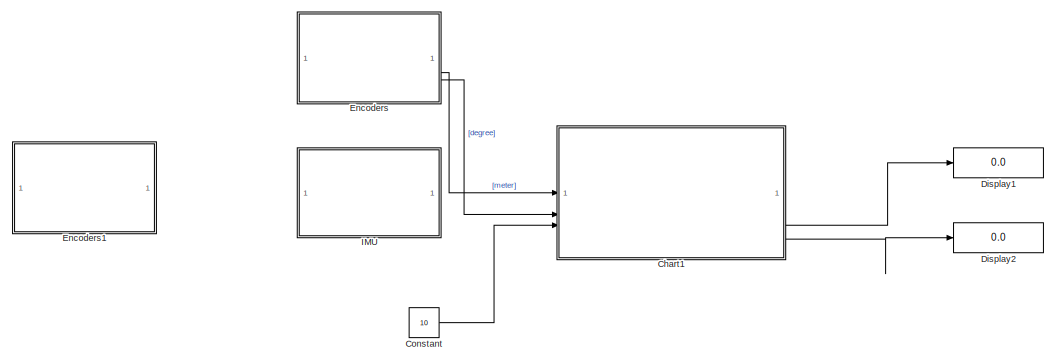
[diagram: root canvas - part 1/6, top left region]
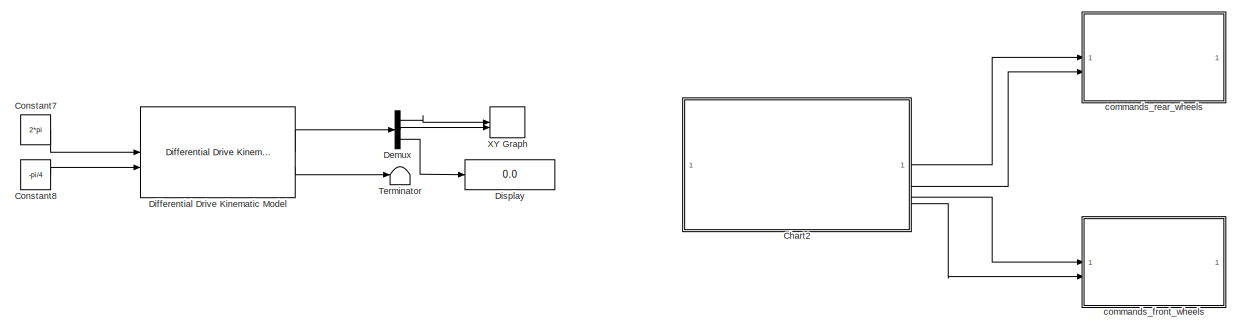
[diagram: root canvas - part 2/6, top right region]
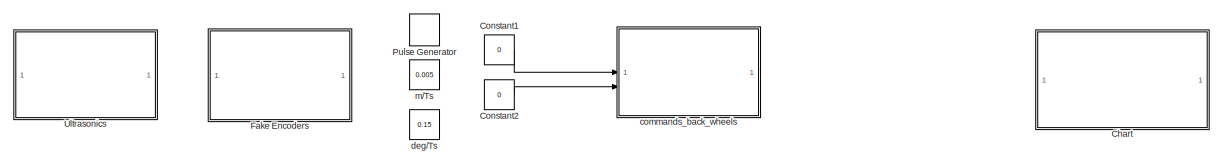
[diagram: root canvas - part 3/6, top center region]
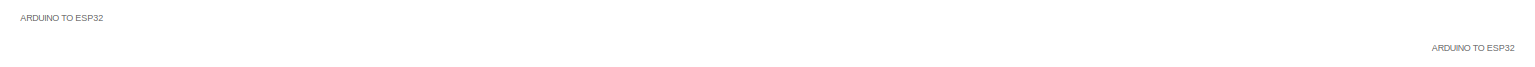
[diagram: root canvas - part 4/6, middle left region]
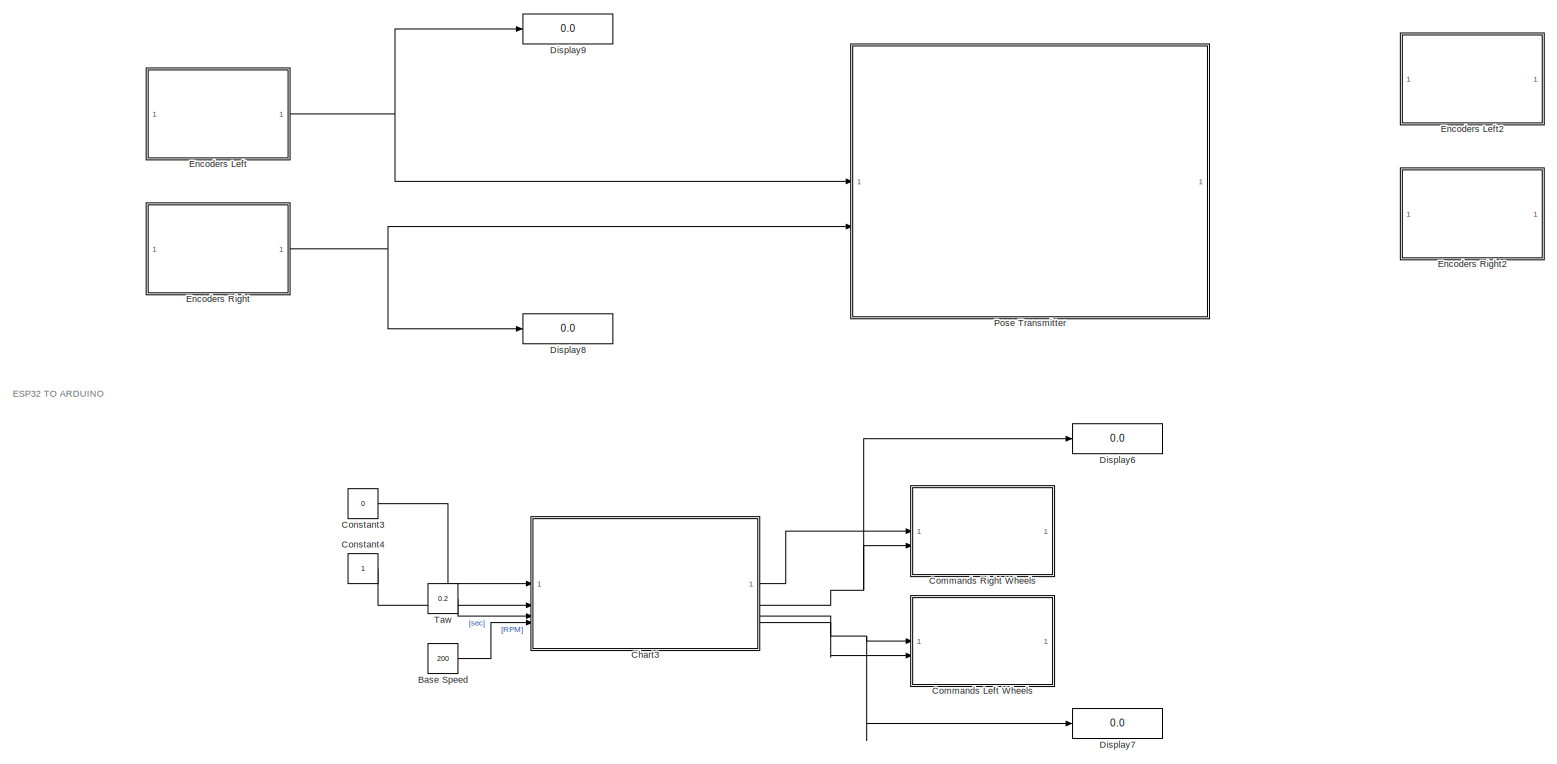
[diagram: root canvas - part 5/6, bottom center region]
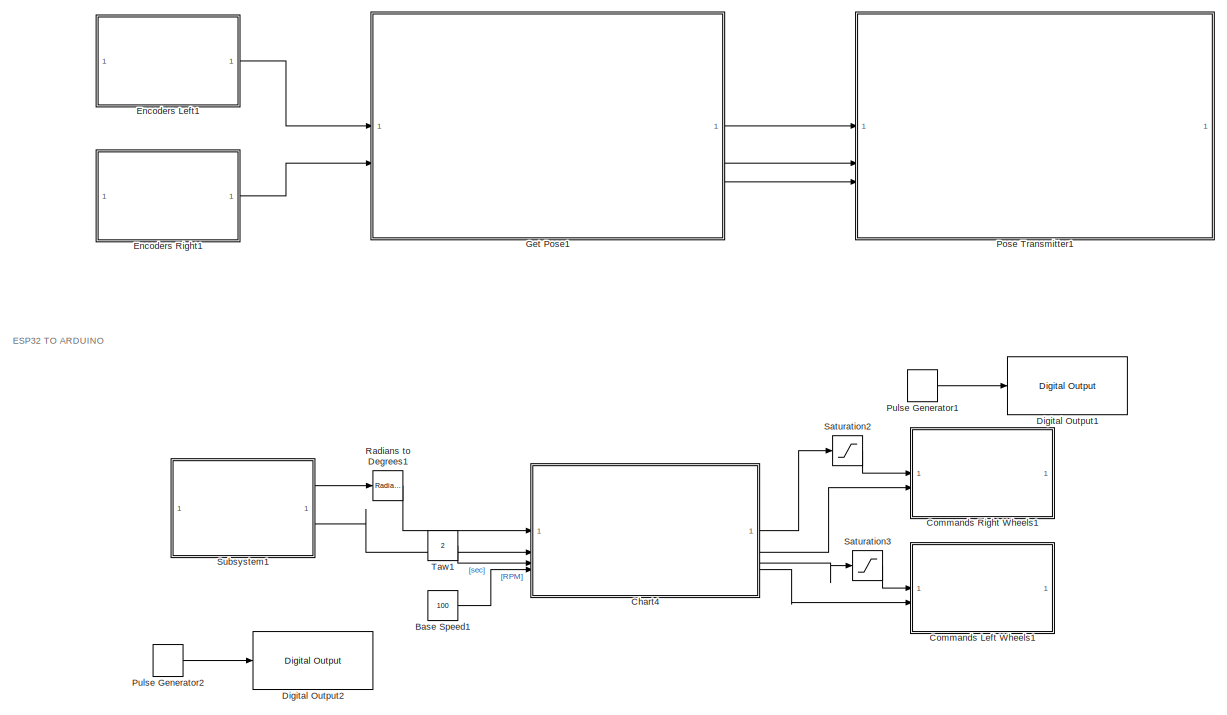
[diagram: root canvas - part 6/6, bottom left region]
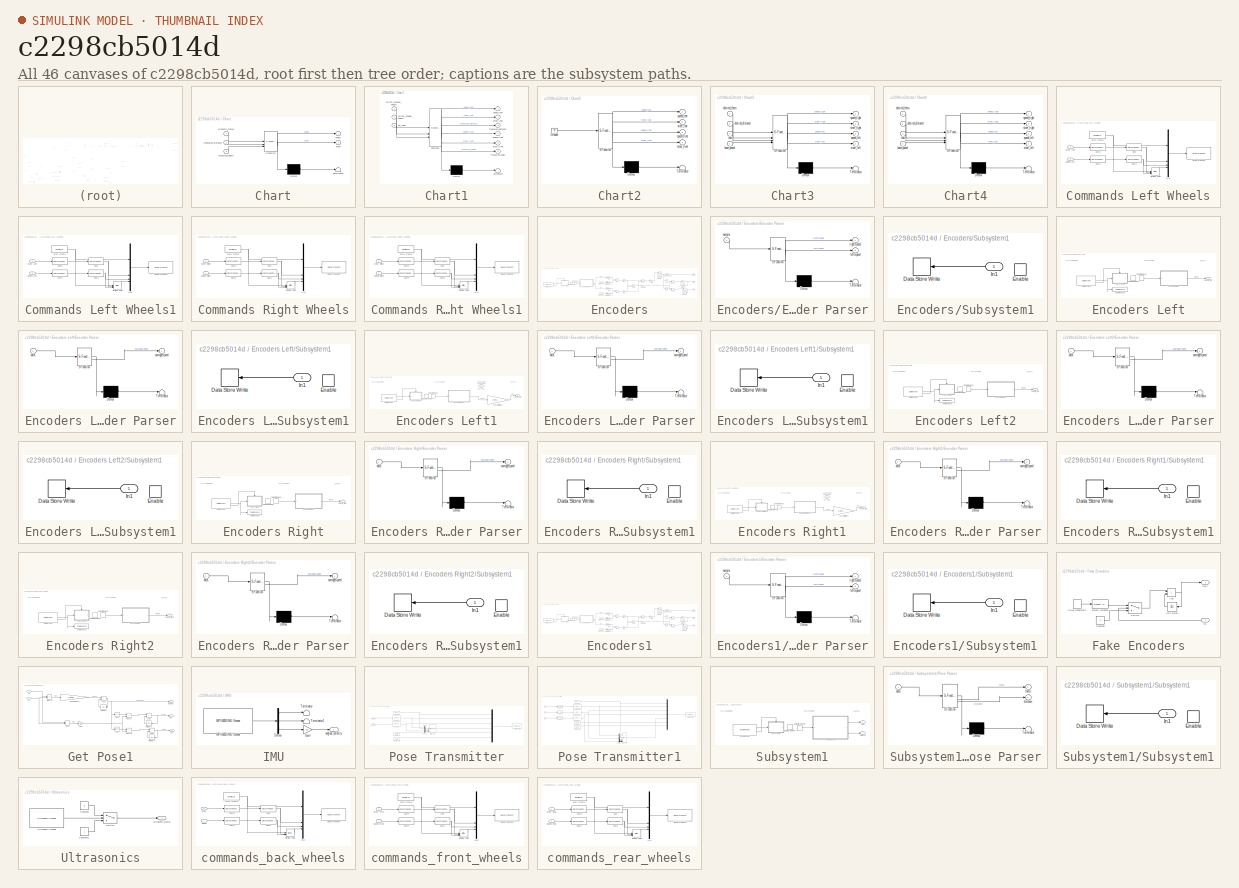
[diagram: thumbnail index - all 46 canvases of the model, root first then tree order]
MODEL slx_c2298cb5014d
KIND model
CONFIG AbsTol = auto
CONFIG EnableMultiTasking = on
CONFIG FixedStep = 0.01
CONFIG InitFcn = Ts = 0.1;\ndiameter = 165; %mm\nwidth = 441; %mm
CONFIG MaxStep = auto
CONFIG MinStep = auto
CONFIG RelTol = 1e-3
CONFIG SampleTimeConstraint = Unconstrained
CONFIG SolverName = FixedStepAuto
CONFIG StartTime = 0.0
CONFIG StopTime = inf
BLOCK [Constant] Base Speed
  SampleTime = Ts
  Value = 200
BLOCK [Constant] Base Speed1
  Commented = on
  SampleTime = Ts
  Value = 100
BLOCK [SubSystem] Chart
  Commented = on
  ErrorFcn = Stateflow.Translate.translate
  PermitHierarchicalResolution = ExplicitOnly
  SFBlockType = Chart
  TreatAsAtomicUnit = on
BLOCK [Demux] Chart/ Demux 
  Outputs = 1
BLOCK [S-Function] Chart/ SFunction 
  EnableBusSupport = off
  FunctionName = sf_sfun
  PortCounts = [3 3]
  SFcnIsStateOwnerBlock = off
  SFunctionDeploymentMode = off
  Tag = Stateflow S-Function 3
BLOCK [Terminator] Chart/ Terminator 
BLOCK [Inport] Chart/measured_angle
  Port = 3
BLOCK [Inport] Chart/measured_distance
  Port = 2
BLOCK [Outport] Chart/speed
BLOCK [Outport] Chart/steer
  Port = 2
BLOCK [Inport] Chart/utrasonic_status
BLOCK [SubSystem] Chart1
  Commented = on
  ErrorFcn = Stateflow.Translate.translate
  PermitHierarchicalResolution = ExplicitOnly
  PortSchema = {"entries":[{"content":{"sides":[{"content":{"connectorIds":["In1","In2","In3"]},"type":"ConnectorPlacement.EquallySpacedRectSide","uuid":"a18cf0c3-3c77-458c-bb3e-450a9e5c4723"},{"content":{"connectorIds":["Out1","Out2","Out3","Out6","Out4","Out5"],"side":"RIGHT"},"type":"ConnectorPlacement.EquallySpacedRectSide","uuid":"c8115a23-9c0e-4673-86fd-819843dfe009"},{"content":{"side":"TOP"},"type":"Conn...<+269ch>
  SFBlockType = Chart
  TreatAsAtomicUnit = on
BLOCK [Demux] Chart1/ Demux 
  Outputs = 1
BLOCK [S-Function] Chart1/ SFunction 
  EnableBusSupport = on
  FunctionName = sf_sfun
  PortCounts = [3 7]
  SFcnIsStateOwnerBlock = off
  SFunctionDeploymentMode = off
  Tag = Stateflow S-Function 1
BLOCK [Terminator] Chart1/ Terminator 
BLOCK [Inport] Chart1/current_angular_velocity
  Port = 2
BLOCK [Inport] Chart1/current_encoder_velocity
BLOCK [Outport] Chart1/measured_angle
  Port = 6
BLOCK [Outport] Chart1/measured_distance
  Port = 3
BLOCK [Inport] Chart1/set_point
  Port = 3
BLOCK [Outport] Chart1/speed_front
  Port = 4
BLOCK [Outport] Chart1/speed_rear
BLOCK [Outport] Chart1/stear_front
  Port = 5
BLOCK [Outport] Chart1/steer_rear
  Port = 2
BLOCK [SubSystem] Chart2
  Commented = on
  ErrorFcn = Stateflow.Translate.translate
  PermitHierarchicalResolution = ExplicitOnly
  SFBlockType = Chart
  TreatAsAtomicUnit = on
BLOCK [Demux] Chart2/ Demux 
  Outputs = 1
BLOCK [Ground] Chart2/ Ground 
BLOCK [S-Function] Chart2/ SFunction 
  EnableBusSupport = on
  FunctionName = sf_sfun
  PortCounts = [1 5]
  SFcnIsStateOwnerBlock = off
  SFunctionDeploymentMode = off
  Tag = Stateflow S-Function 4
BLOCK [Terminator] Chart2/ Terminator 
BLOCK [Outport] Chart2/speed_front
  Port = 3
BLOCK [Outport] Chart2/speed_rear
BLOCK [Outport] Chart2/stear_front
  Port = 4
BLOCK [Outport] Chart2/steer_rear
  Port = 2
BLOCK [SubSystem] Chart3
  ErrorFcn = Stateflow.Translate.translate
  PermitHierarchicalResolution = ExplicitOnly
  SFBlockType = Chart
  TreatAsAtomicUnit = on
BLOCK [Demux] Chart3/ Demux 
  Outputs = 1
BLOCK [S-Function] Chart3/ SFunction 
  EnableBusSupport = on
  FunctionName = sf_sfun
  PortCounts = [4 5]
  SFcnIsStateOwnerBlock = off
  SFunctionDeploymentMode = off
  Tag = Stateflow S-Function 9
BLOCK [Terminator] Chart3/ Terminator 
BLOCK [Inport] Chart3/base_speed
  Port = 4
BLOCK [Inport] Chart3/desired_distance
  Port = 2
BLOCK [Inport] Chart3/desired_theta
BLOCK [Outport] Chart3/speed_left
  Port = 3
BLOCK [Outport] Chart3/speed_right
BLOCK [Outport] Chart3/steer_left
  Port = 4
BLOCK [Outport] Chart3/steer_right
  Port = 2
BLOCK [Inport] Chart3/taw
  Port = 3
BLOCK [SubSystem] Chart4
  Commented = on
  ErrorFcn = Stateflow.Translate.translate
  PermitHierarchicalResolution = ExplicitOnly
  SFBlockType = Chart
  TreatAsAtomicUnit = on
BLOCK [Demux] Chart4/ Demux 
  Outputs = 1
BLOCK [S-Function] Chart4/ SFunction 
  EnableBusSupport = on
  FunctionName = sf_sfun
  PortCounts = [4 5]
  SFcnIsStateOwnerBlock = off
  SFunctionDeploymentMode = off
  Tag = Stateflow S-Function 10
BLOCK [Terminator] Chart4/ Terminator 
BLOCK [Inport] Chart4/base_speed
  Port = 4
BLOCK [Inport] Chart4/desired_distance
  Port = 2
BLOCK [Inport] Chart4/desired_theta
BLOCK [Outport] Chart4/speed_left
  Port = 3
BLOCK [Outport] Chart4/speed_right
BLOCK [Outport] Chart4/steer_left
  Port = 4
BLOCK [Outport] Chart4/steer_right
  Port = 2
BLOCK [Inport] Chart4/taw
  Port = 3
BLOCK [SubSystem] Commands Left Wheels
  SystemSampleTime = 0.1
  TreatAsAtomicUnit = on
BLOCK [Reference] Commands Left Wheels/Bitwise XOR1  REF=simulink/Logic and Bit
Operations/Bitwise
Operator
  LibrarySourceBlock = simulink/Quick Insert/Logic and Bit\nOperations/Bitwise XOR
  SourceBlock = simulink/Logic and Bit\nOperations/Bitwise\nOperator
  SourceType = Bitwise Operator
BLOCK [DataTypeConversion] Commands Left Wheels/Cast
  OutDataTypeStr = uint16
  RndMeth = Floor
  SaturateOnIntegerOverflow = off
BLOCK [DataTypeConversion] Commands Left Wheels/Cast1
  OutDataTypeStr = uint16
  RndMeth = Floor
  SaturateOnIntegerOverflow = off
BLOCK [DataTypeConversion] Commands Left Wheels/Cast2
  OutDataTypeStr = int16
  RndMeth = Floor
  SaturateOnIntegerOverflow = off
BLOCK [DataTypeConversion] Commands Left Wheels/Cast3
  OutDataTypeStr = int16
  RndMeth = Floor
  SaturateOnIntegerOverflow = off
BLOCK [Mux] Commands Left Wheels/Mux
  DisplayOption = bar
BLOCK [Reference] Commands Left Wheels/Serial Transmit  REF=arduinolib/Serial Transmit
  SourceBlock = arduinolib/Serial Transmit
  SourceType = Arduino Serial Transmit
BLOCK [Inport] Commands Left Wheels/Speed Left
BLOCK [Constant] Commands Left Wheels/Start Frame
  OutDataTypeStr = uint16
  Value = 0xABCD
BLOCK [Inport] Commands Left Wheels/Steer Left
  Port = 2
BLOCK [SubSystem] Commands Left Wheels1
  Commented = on
  SystemSampleTime = 0.1
  TreatAsAtomicUnit = on
BLOCK [Reference] Commands Left Wheels1/Bitwise XOR1  REF=simulink/Logic and Bit
Operations/Bitwise
Operator
  LibrarySourceBlock = simulink/Quick Insert/Logic and Bit\nOperations/Bitwise XOR
  SourceBlock = simulink/Logic and Bit\nOperations/Bitwise\nOperator
  SourceType = Bitwise Operator
BLOCK [DataTypeConversion] Commands Left Wheels1/Cast
  OutDataTypeStr = uint16
  RndMeth = Floor
  SaturateOnIntegerOverflow = off
BLOCK [DataTypeConversion] Commands Left Wheels1/Cast1
  OutDataTypeStr = uint16
  RndMeth = Floor
  SaturateOnIntegerOverflow = off
BLOCK [DataTypeConversion] Commands Left Wheels1/Cast2
  OutDataTypeStr = int16
  RndMeth = Floor
  SaturateOnIntegerOverflow = off
BLOCK [DataTypeConversion] Commands Left Wheels1/Cast3
  OutDataTypeStr = int16
  RndMeth = Floor
  SaturateOnIntegerOverflow = off
BLOCK [Mux] Commands Left Wheels1/Mux
  DisplayOption = bar
BLOCK [Reference] Commands Left Wheels1/Serial Transmit  REF=arduinolib/Serial Transmit
  SourceBlock = arduinolib/Serial Transmit
  SourceType = Arduino Serial Transmit
BLOCK [Inport] Commands Left Wheels1/Speed Left
BLOCK [Constant] Commands Left Wheels1/Start Frame
  OutDataTypeStr = uint16
  Value = 0xABCD
BLOCK [Inport] Commands Left Wheels1/Steer Left
  Port = 2
BLOCK [SubSystem] Commands Right Wheels
  SystemSampleTime = 0.1
  TreatAsAtomicUnit = on
BLOCK [Reference] Commands Right Wheels/Bitwise XOR1  REF=simulink/Logic and Bit
Operations/Bitwise
Operator
  LibrarySourceBlock = simulink/Quick Insert/Logic and Bit\nOperations/Bitwise XOR
  SourceBlock = simulink/Logic and Bit\nOperations/Bitwise\nOperator
  SourceType = Bitwise Operator
BLOCK [DataTypeConversion] Commands Right Wheels/Cast
  OutDataTypeStr = uint16
  RndMeth = Floor
  SaturateOnIntegerOverflow = off
BLOCK [DataTypeConversion] Commands Right Wheels/Cast1
  OutDataTypeStr = uint16
  RndMeth = Floor
  SaturateOnIntegerOverflow = off
BLOCK [DataTypeConversion] Commands Right Wheels/Cast2
  OutDataTypeStr = int16
  RndMeth = Floor
  SaturateOnIntegerOverflow = off
BLOCK [DataTypeConversion] Commands Right Wheels/Cast3
  OutDataTypeStr = int16
  RndMeth = Floor
  SaturateOnIntegerOverflow = off
BLOCK [Mux] Commands Right Wheels/Mux
  DisplayOption = bar
BLOCK [Reference] Commands Right Wheels/Serial Transmit  REF=arduinolib/Serial Transmit
  SourceBlock = arduinolib/Serial Transmit
  SourceType = Arduino Serial Transmit
BLOCK [Inport] Commands Right Wheels/Speed Right
BLOCK [Constant] Commands Right Wheels/Start Frame
  OutDataTypeStr = uint16
  Value = 0xABCD
BLOCK [Inport] Commands Right Wheels/Steer Right
  Port = 2
BLOCK [SubSystem] Commands Right Wheels1
  Commented = on
  SystemSampleTime = 0.1
  TreatAsAtomicUnit = on
BLOCK [Reference] Commands Right Wheels1/Bitwise XOR1  REF=simulink/Logic and Bit
Operations/Bitwise
Operator
  LibrarySourceBlock = simulink/Quick Insert/Logic and Bit\nOperations/Bitwise XOR
  SourceBlock = simulink/Logic and Bit\nOperations/Bitwise\nOperator
  SourceType = Bitwise Operator
BLOCK [DataTypeConversion] Commands Right Wheels1/Cast
  OutDataTypeStr = uint16
  RndMeth = Floor
  SaturateOnIntegerOverflow = off
BLOCK [DataTypeConversion] Commands Right Wheels1/Cast1
  OutDataTypeStr = uint16
  RndMeth = Floor
  SaturateOnIntegerOverflow = off
BLOCK [DataTypeConversion] Commands Right Wheels1/Cast2
  OutDataTypeStr = int16
  RndMeth = Floor
  SaturateOnIntegerOverflow = off
BLOCK [DataTypeConversion] Commands Right Wheels1/Cast3
  OutDataTypeStr = int16
  RndMeth = Floor
  SaturateOnIntegerOverflow = off
BLOCK [Mux] Commands Right Wheels1/Mux
  DisplayOption = bar
BLOCK [Reference] Commands Right Wheels1/Serial Transmit  REF=arduinolib/Serial Transmit
  SourceBlock = arduinolib/Serial Transmit
  SourceType = Arduino Serial Transmit
BLOCK [Inport] Commands Right Wheels1/Speed Right
BLOCK [Constant] Commands Right Wheels1/Start Frame
  OutDataTypeStr = uint16
  Value = 0xABCD
BLOCK [Inport] Commands Right Wheels1/Steer Right
  Port = 2
BLOCK [Constant] Constant
  Commented = on
  SampleTime = Ts
  Value = 10
BLOCK [Constant] Constant1
  Commented = on
  Value = 0
BLOCK [Constant] Constant2
  Commented = on
  Value = 0
BLOCK [Constant] Constant3
  OutDataTypeStr = single
  Value = 0
BLOCK [Constant] Constant4
  OutDataTypeStr = single
BLOCK [Constant] Constant7
  Commented = on
  Value = 2*pi
BLOCK [Constant] Constant8
  Commented = on
  Value = -pi/4
BLOCK [Demux] Demux
  Commented = on
  Outputs = 3
BLOCK [Reference] Differential Drive Kinematic Model  REF=robotmobilelib/Differential Drive Kinematic Model
  Commented = on
  SourceBlock = robotmobilelib/Differential Drive Kinematic Model
  SourceType = Differential Drive Kinematic Model
BLOCK [Reference] Digital Output1  REF=arduinolib/Digital Output
  Commented = on
  SourceBlock = arduinolib/Digital Output
  SourceType = Arduino Digital Output
BLOCK [Reference] Digital Output2  REF=arduinolib/Digital Output
  Commented = on
  SourceBlock = arduinolib/Digital Output
  SourceType = Arduino Digital Output
BLOCK [Display] Display
  Commented = on
  Decimation = 1
BLOCK [Display] Display1
  Commented = on
  Decimation = 1
BLOCK [Display] Display2
  Commented = on
  Decimation = 1
BLOCK [Display] Display6
  Decimation = 1
BLOCK [Display] Display7
  Decimation = 1
BLOCK [Display] Display8
  Decimation = 1
BLOCK [Display] Display9
  Decimation = 1
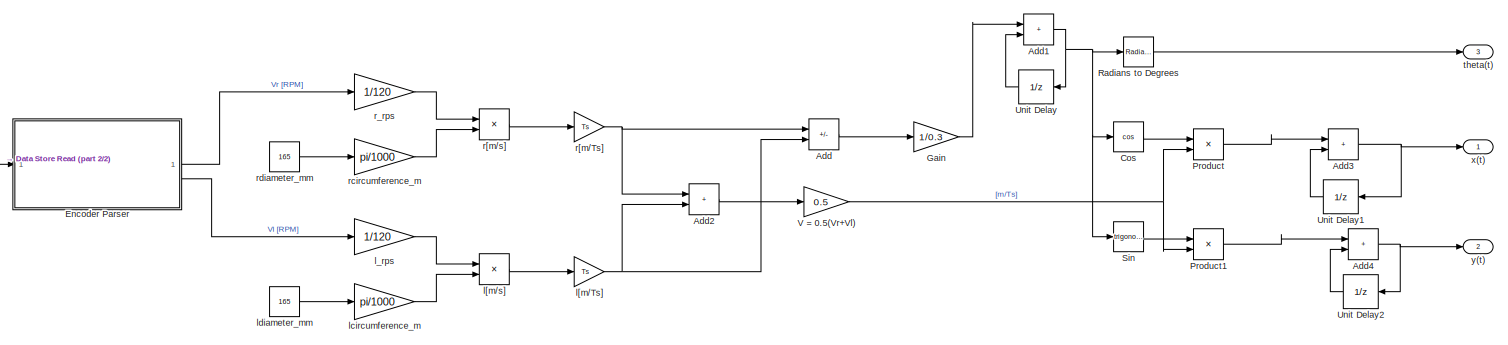
[diagram: Encoders - part 1/2, most of the canvas]
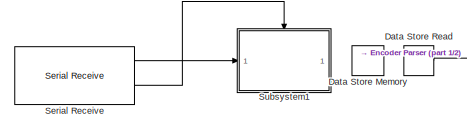
[diagram: Encoders - part 2/2, middle left region]
BLOCK [SubSystem] Encoders
  Commented = on
BLOCK [SubSystem] Encoders Left
BLOCK [DataStoreMemory] Encoders Left/Data Store Memory
  Dimensions = [1 18]
  InitialValue = 88
  OutDataTypeStr = int16
  ShowAdditionalParam = off
  WriteAfterWriteMsg = warning
BLOCK [DataStoreRead] Encoders Left/Data Store Read
  IndexOptions = Index vector (dialog)
  Indices = 1
  OutputSizes = 1
BLOCK [SubSystem] Encoders Left/Encoder Parser
  ErrorFcn = Stateflow.Translate.translate
  LibrarySourceBlock = simulink/User-Defined\nFunctions/MATLAB Function
  PermitHierarchicalResolution = ExplicitOnly
  SFBlockType = MATLAB Function
  TreatAsAtomicUnit = on
BLOCK [Demux] Encoders Left/Encoder Parser/ Demux 
  Outputs = 1
BLOCK [S-Function] Encoders Left/Encoder Parser/ SFunction 
  EnableBusSupport = on
  FunctionName = sf_sfun
  PortCounts = [1 2]
  SFcnIsStateOwnerBlock = off
  SFunctionDeploymentMode = off
  Tag = Stateflow S-Function 8
BLOCK [Terminator] Encoders Left/Encoder Parser/ Terminator 
BLOCK [Outport] Encoders Left/Encoder Parser/averageSpeed
BLOCK [Inport] Encoders Left/Encoder Parser/data
BLOCK [Reference] Encoders Left/Serial Receive  REF=arduinolib/Serial Receive
  SourceBlock = arduinolib/Serial Receive
  SourceType = Arduino Serial Receive
BLOCK [SubSystem] Encoders Left/Subsystem1
BLOCK [DataStoreWrite] Encoders Left/Subsystem1/Data Store Write
  IndexOptions = Index vector (dialog)
  Indices = 1
  NameLocation = top
  OutputSizes = 1
BLOCK [EnablePort] Encoders Left/Subsystem1/Enable
BLOCK [Inport] Encoders Left/Subsystem1/In1
BLOCK [ToWorkspace] Encoders Left/To Workspace
  FixptAsFi = on
  MaxDataPoints = inf
  SampleTime = -1
  Save2DSignal = 2-D array (concatenate along first dimension)
  VariableName = port3_data
BLOCK [Outport] Encoders Left/velocity_left
BLOCK [SubSystem] Encoders Left1
  Commented = on
BLOCK [Gain] Encoders Left1/Convert to [m//Ts]
  Gain = 2*(pi^2)*diameter*Ts/60000
BLOCK [DataStoreMemory] Encoders Left1/Data Store Memory
  Dimensions = [1 18]
  InitialValue = 88
  OutDataTypeStr = int16
  ShowAdditionalParam = off
  WriteAfterWriteMsg = warning
BLOCK [DataStoreRead] Encoders Left1/Data Store Read
  IndexOptions = Index vector (dialog)
  Indices = 1
  OutputSizes = 1
BLOCK [SubSystem] Encoders Left1/Encoder Parser
  ErrorFcn = Stateflow.Translate.translate
  LibrarySourceBlock = simulink/User-Defined\nFunctions/MATLAB Function
  PermitHierarchicalResolution = ExplicitOnly
  SFBlockType = MATLAB Function
  TreatAsAtomicUnit = on
BLOCK [Demux] Encoders Left1/Encoder Parser/ Demux 
  Outputs = 1
BLOCK [S-Function] Encoders Left1/Encoder Parser/ SFunction 
  EnableBusSupport = on
  FunctionName = sf_sfun
  PortCounts = [1 2]
  SFcnIsStateOwnerBlock = off
  SFunctionDeploymentMode = off
  Tag = Stateflow S-Function 11
BLOCK [Terminator] Encoders Left1/Encoder Parser/ Terminator 
BLOCK [Outport] Encoders Left1/Encoder Parser/averageSpeed
BLOCK [Inport] Encoders Left1/Encoder Parser/data
BLOCK [Reference] Encoders Left1/Serial Receive  REF=arduinolib/Serial Receive
  SourceBlock = arduinolib/Serial Receive
  SourceType = Arduino Serial Receive
BLOCK [SubSystem] Encoders Left1/Subsystem1
BLOCK [DataStoreWrite] Encoders Left1/Subsystem1/Data Store Write
  IndexOptions = Index vector (dialog)
  Indices = 1
  NameLocation = top
  OutputSizes = 1
BLOCK [EnablePort] Encoders Left1/Subsystem1/Enable
BLOCK [Inport] Encoders Left1/Subsystem1/In1
BLOCK [Outport] Encoders Left1/velocity_left
BLOCK [SubSystem] Encoders Left2
  Commented = on
BLOCK [DataStoreMemory] Encoders Left2/Data Store Memory
  Dimensions = [1 18]
  InitialValue = 88
  OutDataTypeStr = int16
  ShowAdditionalParam = off
  WriteAfterWriteMsg = warning
BLOCK [DataStoreRead] Encoders Left2/Data Store Read
  IndexOptions = Index vector (dialog)
  Indices = 1
  OutputSizes = 1
BLOCK [SubSystem] Encoders Left2/Encoder Parser
  ErrorFcn = Stateflow.Translate.translate
  LibrarySourceBlock = simulink/User-Defined\nFunctions/MATLAB Function
  PermitHierarchicalResolution = ExplicitOnly
  SFBlockType = MATLAB Function
  TreatAsAtomicUnit = on
BLOCK [Demux] Encoders Left2/Encoder Parser/ Demux 
  Outputs = 1
BLOCK [S-Function] Encoders Left2/Encoder Parser/ SFunction 
  EnableBusSupport = on
  FunctionName = sf_sfun
  PortCounts = [1 2]
  SFcnIsStateOwnerBlock = off
  SFunctionDeploymentMode = off
  Tag = Stateflow S-Function 7
BLOCK [Terminator] Encoders Left2/Encoder Parser/ Terminator 
BLOCK [Outport] Encoders Left2/Encoder Parser/averageSpeed
BLOCK [Inport] Encoders Left2/Encoder Parser/data
BLOCK [Reference] Encoders Left2/Serial Receive  REF=arduinolib/Serial Receive
  SourceBlock = arduinolib/Serial Receive
  SourceType = Arduino Serial Receive
BLOCK [SubSystem] Encoders Left2/Subsystem1
BLOCK [DataStoreWrite] Encoders Left2/Subsystem1/Data Store Write
  IndexOptions = Index vector (dialog)
  Indices = 1
  NameLocation = top
  OutputSizes = 1
BLOCK [EnablePort] Encoders Left2/Subsystem1/Enable
BLOCK [Inport] Encoders Left2/Subsystem1/In1
BLOCK [ToWorkspace] Encoders Left2/To Workspace
  FixptAsFi = on
  MaxDataPoints = inf
  SampleTime = -1
  Save2DSignal = 2-D array (concatenate along first dimension)
  VariableName = port3_data
BLOCK [Outport] Encoders Left2/velocity_left
BLOCK [SubSystem] Encoders Right
BLOCK [DataStoreMemory] Encoders Right/Data Store Memory
  Dimensions = [1 18]
  InitialValue = 88
  OutDataTypeStr = int16
  ShowAdditionalParam = off
  WriteAfterWriteMsg = warning
BLOCK [DataStoreRead] Encoders Right/Data Store Read
  IndexOptions = Index vector (dialog)
  Indices = 1
  OutputSizes = 1
BLOCK [SubSystem] Encoders Right/Encoder Parser
  ErrorFcn = Stateflow.Translate.translate
  LibrarySourceBlock = simulink/User-Defined\nFunctions/MATLAB Function
  PermitHierarchicalResolution = ExplicitOnly
  SFBlockType = MATLAB Function
  TreatAsAtomicUnit = on
BLOCK [Demux] Encoders Right/Encoder Parser/ Demux 
  Outputs = 1
BLOCK [S-Function] Encoders Right/Encoder Parser/ SFunction 
  EnableBusSupport = on
  FunctionName = sf_sfun
  PortCounts = [1 2]
  SFcnIsStateOwnerBlock = off
  SFunctionDeploymentMode = off
  Tag = Stateflow S-Function 6
BLOCK [Terminator] Encoders Right/Encoder Parser/ Terminator 
BLOCK [Outport] Encoders Right/Encoder Parser/averageSpeed
BLOCK [Inport] Encoders Right/Encoder Parser/data
BLOCK [Reference] Encoders Right/Serial Receive  REF=arduinolib/Serial Receive
  SourceBlock = arduinolib/Serial Receive
  SourceType = Arduino Serial Receive
BLOCK [SubSystem] Encoders Right/Subsystem1
BLOCK [DataStoreWrite] Encoders Right/Subsystem1/Data Store Write
  IndexOptions = Index vector (dialog)
  Indices = 1
  NameLocation = top
  OutputSizes = 1
BLOCK [EnablePort] Encoders Right/Subsystem1/Enable
BLOCK [Inport] Encoders Right/Subsystem1/In1
BLOCK [ToWorkspace] Encoders Right/To Workspace
  FixptAsFi = on
  MaxDataPoints = inf
  SampleTime = -1
  Save2DSignal = 2-D array (concatenate along first dimension)
  VariableName = port2_data
BLOCK [Outport] Encoders Right/velocity_right
BLOCK [SubSystem] Encoders Right1
  Commented = on
BLOCK [DataStoreMemory] Encoders Right1/Data Store Memory
  Dimensions = [1 18]
  InitialValue = 88
  OutDataTypeStr = int16
  ShowAdditionalParam = off
  WriteAfterWriteMsg = warning
BLOCK [DataStoreRead] Encoders Right1/Data Store Read
  IndexOptions = Index vector (dialog)
  Indices = 1
  OutputSizes = 1
BLOCK [SubSystem] Encoders Right1/Encoder Parser
  ErrorFcn = Stateflow.Translate.translate
  LibrarySourceBlock = simulink/User-Defined\nFunctions/MATLAB Function
  PermitHierarchicalResolution = ExplicitOnly
  SFBlockType = MATLAB Function
  TreatAsAtomicUnit = on
BLOCK [Demux] Encoders Right1/Encoder Parser/ Demux 
  Outputs = 1
BLOCK [S-Function] Encoders Right1/Encoder Parser/ SFunction 
  EnableBusSupport = on
  FunctionName = sf_sfun
  PortCounts = [1 2]
  SFcnIsStateOwnerBlock = off
  SFunctionDeploymentMode = off
  Tag = Stateflow S-Function 12
BLOCK [Terminator] Encoders Right1/Encoder Parser/ Terminator 
BLOCK [Outport] Encoders Right1/Encoder Parser/averageSpeed
BLOCK [Inport] Encoders Right1/Encoder Parser/data
BLOCK [Reference] Encoders Right1/Serial Receive  REF=arduinolib/Serial Receive
  SourceBlock = arduinolib/Serial Receive
  SourceType = Arduino Serial Receive
BLOCK [SubSystem] Encoders Right1/Subsystem1
BLOCK [DataStoreWrite] Encoders Right1/Subsystem1/Data Store Write
  IndexOptions = Index vector (dialog)
  Indices = 1
  NameLocation = top
  OutputSizes = 1
BLOCK [EnablePort] Encoders Right1/Subsystem1/Enable
BLOCK [Inport] Encoders Right1/Subsystem1/In1
BLOCK [Gain] Encoders Right1/convert to  [m//Ts]
  Gain = 2*(pi^2)*diameter*Ts/60000
BLOCK [Outport] Encoders Right1/velocity_right
BLOCK [SubSystem] Encoders Right2
  Commented = on
BLOCK [DataStoreMemory] Encoders Right2/Data Store Memory
  Dimensions = [1 18]
  InitialValue = 88
  OutDataTypeStr = int16
  ShowAdditionalParam = off
  WriteAfterWriteMsg = warning
BLOCK [DataStoreRead] Encoders Right2/Data Store Read
  IndexOptions = Index vector (dialog)
  Indices = 1
  OutputSizes = 1
BLOCK [SubSystem] Encoders Right2/Encoder Parser
  ErrorFcn = Stateflow.Translate.translate
  LibrarySourceBlock = simulink/User-Defined\nFunctions/MATLAB Function
  PermitHierarchicalResolution = ExplicitOnly
  SFBlockType = MATLAB Function
  TreatAsAtomicUnit = on
BLOCK [Demux] Encoders Right2/Encoder Parser/ Demux 
  Outputs = 1
BLOCK [S-Function] Encoders Right2/Encoder Parser/ SFunction 
  EnableBusSupport = on
  FunctionName = sf_sfun
  PortCounts = [1 2]
  SFcnIsStateOwnerBlock = off
  SFunctionDeploymentMode = off
  Tag = Stateflow S-Function 14
BLOCK [Terminator] Encoders Right2/Encoder Parser/ Terminator 
BLOCK [Outport] Encoders Right2/Encoder Parser/averageSpeed
BLOCK [Inport] Encoders Right2/Encoder Parser/data
BLOCK [Reference] Encoders Right2/Serial Receive  REF=arduinolib/Serial Receive
  SourceBlock = arduinolib/Serial Receive
  SourceType = Arduino Serial Receive
BLOCK [SubSystem] Encoders Right2/Subsystem1
BLOCK [DataStoreWrite] Encoders Right2/Subsystem1/Data Store Write
  IndexOptions = Index vector (dialog)
  Indices = 1
  NameLocation = top
  OutputSizes = 1
BLOCK [EnablePort] Encoders Right2/Subsystem1/Enable
BLOCK [Inport] Encoders Right2/Subsystem1/In1
BLOCK [ToWorkspace] Encoders Right2/To Workspace
  FixptAsFi = on
  MaxDataPoints = inf
  SampleTime = -1
  Save2DSignal = 2-D array (concatenate along first dimension)
  VariableName = port2_data
BLOCK [Outport] Encoders Right2/velocity_right
BLOCK [Sum] Encoders/Add
  IconShape = rectangular
  Inputs = +-
BLOCK [Sum] Encoders/Add1
  IconShape = rectangular
BLOCK [Sum] Encoders/Add2
  IconShape = rectangular
BLOCK [Sum] Encoders/Add3
  IconShape = rectangular
BLOCK [Sum] Encoders/Add4
  IconShape = rectangular
BLOCK [Trigonometry] Encoders/Cos
  Operator = cos
BLOCK [DataStoreMemory] Encoders/Data Store Memory
  Dimensions = [1 16]
  InitialValue = 88
  OutDataTypeStr = int16
  ShowAdditionalParam = off
  WriteAfterWriteMsg = warning
BLOCK [DataStoreRead] Encoders/Data Store Read
  IndexOptions = Index vector (dialog)
  Indices = 1
  OutputSizes = 1
BLOCK [SubSystem] Encoders/Encoder Parser
  ErrorFcn = Stateflow.Translate.translate
  LibrarySourceBlock = simulink/User-Defined\nFunctions/MATLAB Function
  PermitHierarchicalResolution = ExplicitOnly
  SFBlockType = MATLAB Function
  TreatAsAtomicUnit = on
BLOCK [Demux] Encoders/Encoder Parser/ Demux 
  Outputs = 1
BLOCK [S-Function] Encoders/Encoder Parser/ SFunction 
  EnableBusSupport = on
  FunctionName = sf_sfun
  PortCounts = [1 3]
  SFcnIsStateOwnerBlock = off
  SFunctionDeploymentMode = off
  Tag = Stateflow S-Function 2
BLOCK [Terminator] Encoders/Encoder Parser/ Terminator 
BLOCK [Outport] Encoders/Encoder Parser/leftSpeed
  Port = 2
BLOCK [Outport] Encoders/Encoder Parser/rightSpeed
BLOCK [Inport] Encoders/Encoder Parser/sample
BLOCK [Gain] Encoders/Gain
  Gain = 1/0.3
BLOCK [Product] Encoders/Product
BLOCK [Product] Encoders/Product1
BLOCK [Reference] Encoders/Radians to Degrees  REF=simulink_extras/Transformations/Radians
to Degrees
  SourceBlock = simulink_extras/Transformations/Radians\nto Degrees
  SourceType = RadiansToDegrees
BLOCK [Reference] Encoders/Serial Receive  REF=arduinolib/Serial Receive
  SourceBlock = arduinolib/Serial Receive
  SourceType = Arduino Serial Receive
BLOCK [Trigonometry] Encoders/Sin
BLOCK [SubSystem] Encoders/Subsystem1
BLOCK [DataStoreWrite] Encoders/Subsystem1/Data Store Write
  IndexOptions = Index vector (dialog)
  Indices = 1
  NameLocation = top
  OutputSizes = 1
BLOCK [EnablePort] Encoders/Subsystem1/Enable
BLOCK [Inport] Encoders/Subsystem1/In1
BLOCK [UnitDelay] Encoders/Unit Delay
  HasFrameUpgradeWarning = on
  SampleTime = -1
BLOCK [UnitDelay] Encoders/Unit Delay1
  HasFrameUpgradeWarning = on
  SampleTime = -1
BLOCK [UnitDelay] Encoders/Unit Delay2
  HasFrameUpgradeWarning = on
  SampleTime = -1
BLOCK [Gain] Encoders/V = 0.5(Vr+Vl)
  Gain = 0.5
BLOCK [Gain] Encoders/l[m//Ts]
  Gain = Ts
BLOCK [Product] Encoders/l[m//s]
BLOCK [Gain] Encoders/l_rps
  Gain = 1/120
BLOCK [Gain] Encoders/lcircumference_m
  Gain = pi/1000
BLOCK [Constant] Encoders/ldiameter_mm
  SampleTime = Ts
  Value = 165
BLOCK [Gain] Encoders/r[m//Ts]
  Gain = Ts
BLOCK [Product] Encoders/r[m//s]
BLOCK [Gain] Encoders/r_rps
  Gain = 1/120
BLOCK [Gain] Encoders/rcircumference_m
  Gain = pi/1000
BLOCK [Constant] Encoders/rdiameter_mm
  SampleTime = Ts
  Value = 165
BLOCK [Outport] Encoders/theta(t)
  Port = 3
BLOCK [Outport] Encoders/x(t)
BLOCK [Outport] Encoders/y(t)
  Port = 2
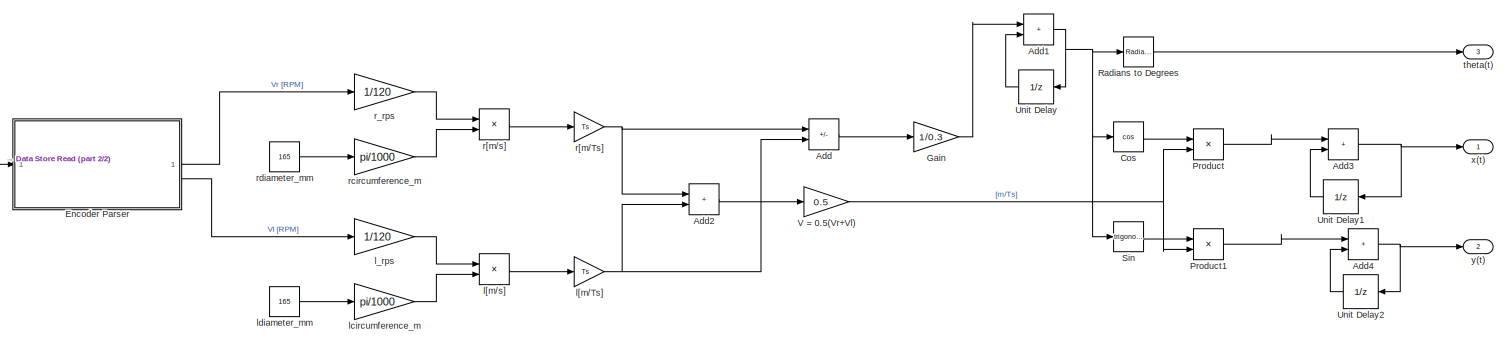
[diagram: Encoders1 - part 1/2, most of the canvas]
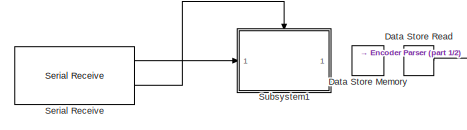
[diagram: Encoders1 - part 2/2, middle left region]
BLOCK [SubSystem] Encoders1
  Commented = on
BLOCK [Sum] Encoders1/Add
  IconShape = rectangular
  Inputs = +-
BLOCK [Sum] Encoders1/Add1
  IconShape = rectangular
BLOCK [Sum] Encoders1/Add2
  IconShape = rectangular
BLOCK [Sum] Encoders1/Add3
  IconShape = rectangular
BLOCK [Sum] Encoders1/Add4
  IconShape = rectangular
BLOCK [Trigonometry] Encoders1/Cos
  Operator = cos
BLOCK [DataStoreMemory] Encoders1/Data Store Memory
  Dimensions = [1 16]
  InitialValue = 88
  OutDataTypeStr = int16
  ShowAdditionalParam = off
  WriteAfterWriteMsg = warning
BLOCK [DataStoreRead] Encoders1/Data Store Read
  IndexOptions = Index vector (dialog)
  Indices = 1
  OutputSizes = 1
BLOCK [SubSystem] Encoders1/Encoder Parser
  ErrorFcn = Stateflow.Translate.translate
  LibrarySourceBlock = simulink/User-Defined\nFunctions/MATLAB Function
  PermitHierarchicalResolution = ExplicitOnly
  SFBlockType = MATLAB Function
  TreatAsAtomicUnit = on
BLOCK [Demux] Encoders1/Encoder Parser/ Demux 
  Outputs = 1
BLOCK [S-Function] Encoders1/Encoder Parser/ SFunction 
  EnableBusSupport = on
  FunctionName = sf_sfun
  PortCounts = [1 3]
  SFcnIsStateOwnerBlock = off
  SFunctionDeploymentMode = off
  Tag = Stateflow S-Function 5
BLOCK [Terminator] Encoders1/Encoder Parser/ Terminator 
BLOCK [Outport] Encoders1/Encoder Parser/leftSpeed
  Port = 2
BLOCK [Outport] Encoders1/Encoder Parser/rightSpeed
BLOCK [Inport] Encoders1/Encoder Parser/sample
BLOCK [Gain] Encoders1/Gain
  Gain = 1/0.3
BLOCK [Product] Encoders1/Product
BLOCK [Product] Encoders1/Product1
BLOCK [Reference] Encoders1/Radians to Degrees  REF=simulink_extras/Transformations/Radians
to Degrees
  SourceBlock = simulink_extras/Transformations/Radians\nto Degrees
  SourceType = RadiansToDegrees
BLOCK [Reference] Encoders1/Serial Receive  REF=arduinolib/Serial Receive
  SourceBlock = arduinolib/Serial Receive
  SourceType = Arduino Serial Receive
BLOCK [Trigonometry] Encoders1/Sin
BLOCK [SubSystem] Encoders1/Subsystem1
BLOCK [DataStoreWrite] Encoders1/Subsystem1/Data Store Write
  IndexOptions = Index vector (dialog)
  Indices = 1
  NameLocation = top
  OutputSizes = 1
BLOCK [EnablePort] Encoders1/Subsystem1/Enable
BLOCK [Inport] Encoders1/Subsystem1/In1
BLOCK [UnitDelay] Encoders1/Unit Delay
  HasFrameUpgradeWarning = on
  SampleTime = -1
BLOCK [UnitDelay] Encoders1/Unit Delay1
  HasFrameUpgradeWarning = on
  SampleTime = -1
BLOCK [UnitDelay] Encoders1/Unit Delay2
  HasFrameUpgradeWarning = on
  SampleTime = -1
BLOCK [Gain] Encoders1/V = 0.5(Vr+Vl)
  Gain = 0.5
BLOCK [Gain] Encoders1/l[m//Ts]
  Gain = Ts
BLOCK [Product] Encoders1/l[m//s]
BLOCK [Gain] Encoders1/l_rps
  Gain = 1/120
BLOCK [Gain] Encoders1/lcircumference_m
  Gain = pi/1000
BLOCK [Constant] Encoders1/ldiameter_mm
  SampleTime = Ts
  Value = 165
BLOCK [Gain] Encoders1/r[m//Ts]
  Gain = Ts
BLOCK [Product] Encoders1/r[m//s]
BLOCK [Gain] Encoders1/r_rps
  Gain = 1/120
BLOCK [Gain] Encoders1/rcircumference_m
  Gain = pi/1000
BLOCK [Constant] Encoders1/rdiameter_mm
  SampleTime = Ts
  Value = 165
BLOCK [Outport] Encoders1/theta(t)
  Port = 3
BLOCK [Outport] Encoders1/x(t)
BLOCK [Outport] Encoders1/y(t)
  Port = 2
BLOCK [SubSystem] Fake Encoders
  Commented = on
  PortSchema = {"entries":[{"content":{"sides":[{"content":{"connectorIds":[]},"type":"ConnectorPlacement.EquallySpacedRectSide","uuid":"5cdba24b-5905-4a96-853c-bd863ba68c1d"},{"content":{"connectorIds":["Out1","In1"],"side":"RIGHT"},"type":"ConnectorPlacement.EquallySpacedRectSide","uuid":"1b3e1760-7d24-420c-94f1-a4f3cc053a4a"},{"content":{"connectorIds":[],"side":"TOP"},"type":"ConnectorPlacement.EquallySpaced...<+241ch>
BLOCK [Sum] Fake Encoders/Add
  IconShape = rectangular
BLOCK [Constant] Fake Encoders/Constant
  Value = 0
BLOCK [Reference] Fake Encoders/Detect Increase  REF=simulink/Logic and Bit
Operations/Detect
Increase
  SourceBlock = simulink/Logic and Bit\nOperations/Detect\nIncrease
  SourceType = Detect Increase
BLOCK [Inport] Fake Encoders/In1
BLOCK [Outport] Fake Encoders/Out1
BLOCK [DiscretePulseGenerator] Fake Encoders/Pulse Generator1
  PulseType = Time based
  PulseWidth = 5
BLOCK [Switch] Fake Encoders/Switch
  Criteria = u2 > Threshold
  InputSameDT = off
  SaturateOnIntegerOverflow = off
BLOCK [UnitDelay] Fake Encoders/Unit Delay
  HasFrameUpgradeWarning = on
  SampleTime = -1
BLOCK [SubSystem] Get Pose1
  Commented = on
BLOCK [Sum] Get Pose1/Add1
  IconShape = rectangular
BLOCK [Sum] Get Pose1/Add3
  IconShape = rectangular
BLOCK [Sum] Get Pose1/Add4
  IconShape = rectangular
BLOCK [Trigonometry] Get Pose1/Cos
  Operator = cos
BLOCK [Sum] Get Pose1/Difference
  IconShape = rectangular
  Inputs = -+
BLOCK [Gain] Get Pose1/Gain
  Gain = 1/2
BLOCK [Inport] Get Pose1/In1
BLOCK [Inport] Get Pose1/In2
  Port = 2
BLOCK [Sum] Get Pose1/Mean
  IconShape = rectangular
BLOCK [Gain] Get Pose1/Omega [rad//Ts]
  Gain = ((diameter)/(2*width))*pi/180
BLOCK [Product] Get Pose1/Product
BLOCK [Product] Get Pose1/Product1
BLOCK [Trigonometry] Get Pose1/Sin
BLOCK [UnitDelay] Get Pose1/Unit Delay
  HasFrameUpgradeWarning = on
  SampleTime = -1
BLOCK [UnitDelay] Get Pose1/Unit Delay1
  HasFrameUpgradeWarning = on
  SampleTime = -1
BLOCK [UnitDelay] Get Pose1/Unit Delay2
  HasFrameUpgradeWarning = on
  SampleTime = -1
BLOCK [Outport] Get Pose1/theta(Ts)
BLOCK [Outport] Get Pose1/x(Ts)
  Port = 2
BLOCK [Outport] Get Pose1/y(Ts)
  Port = 3
BLOCK [SubSystem] IMU
  Commented = on
BLOCK [Demux] IMU/Demux
  Outputs = 3
BLOCK [Gain] IMU/Gain
  Gain = Ts
BLOCK [Reference] IMU/MPU6050 IMU Sensor  REF=arduinosensorlib/MPU6050 IMU Sensor
  SourceBlock = arduinosensorlib/MPU6050 IMU Sensor
  SourceType = MPU6050
BLOCK [Terminator] IMU/Terminator
BLOCK [Terminator] IMU/Terminator1
BLOCK [Outport] IMU/angluar_velocity
BLOCK [SubSystem] Pose Transmitter
BLOCK [Reference] Pose Transmitter/Bitwise XOR  REF=simulink/Logic and Bit
Operations/Bitwise
Operator
  LibrarySourceBlock = simulink/Quick Insert/Logic and Bit\nOperations/Bitwise XOR
  SourceBlock = simulink/Logic and Bit\nOperations/Bitwise\nOperator
  SourceType = Bitwise Operator
BLOCK [Reference] Pose Transmitter/Byte Pack  REF=svdutilitieslib/Byte Pack
  SourceBlock = svdutilitieslib/Byte Pack
  SourceType = Byte pack
BLOCK [Reference] Pose Transmitter/Byte Pack1  REF=svdutilitieslib/Byte Pack
  SourceBlock = svdutilitieslib/Byte Pack
  SourceType = Byte pack
BLOCK [Demux] Pose Transmitter/Demux2
  Outputs = 2
BLOCK [Demux] Pose Transmitter/Demux3
  Outputs = 2
BLOCK [Constant] Pose Transmitter/Dummy
  OutDataTypeStr = uint8
  SampleTime = Ts
  Value = 0xEE
BLOCK [Constant] Pose Transmitter/HEADER
  OutDataTypeStr = uint8
  SampleTime = Ts
  Value = 0xAA
BLOCK [Mux] Pose Transmitter/Mux
  DisplayOption = bar
  Inputs = 6
BLOCK [Reference] Pose Transmitter/Serial Transmit1  REF=arduinolib/Serial Transmit
  SourceBlock = arduinolib/Serial Transmit
  SourceType = Arduino Serial Transmit
BLOCK [Constant] Pose Transmitter/TERMINATOR
  OutDataTypeStr = uint8
  SampleTime = Ts
  Value = 0xEF
BLOCK [Inport] Pose Transmitter/velocity_left
BLOCK [Inport] Pose Transmitter/velocity_right
  Port = 2
BLOCK [SubSystem] Pose Transmitter1
  Commented = on
BLOCK [Reference] Pose Transmitter1/Bitwise XOR  REF=simulink/Logic and Bit
Operations/Bitwise
Operator
  LibrarySourceBlock = simulink/Quick Insert/Logic and Bit\nOperations/Bitwise XOR
  SourceBlock = simulink/Logic and Bit\nOperations/Bitwise\nOperator
  SourceType = Bitwise Operator
BLOCK [Reference] Pose Transmitter1/Byte Pack  REF=svdutilitieslib/Byte Pack
  SourceBlock = svdutilitieslib/Byte Pack
  SourceType = Byte pack
BLOCK [Reference] Pose Transmitter1/Byte Pack1  REF=svdutilitieslib/Byte Pack
  SourceBlock = svdutilitieslib/Byte Pack
  SourceType = Byte pack
BLOCK [Reference] Pose Transmitter1/Byte Pack2  REF=svdutilitieslib/Byte Pack
  SourceBlock = svdutilitieslib/Byte Pack
  SourceType = Byte pack
BLOCK [DataTypeConversion] Pose Transmitter1/Cast
  OutDataTypeStr = single
  RndMeth = Floor
  SaturateOnIntegerOverflow = off
BLOCK [DataTypeConversion] Pose Transmitter1/Cast1
  OutDataTypeStr = single
  RndMeth = Floor
  SaturateOnIntegerOverflow = off
BLOCK [DataTypeConversion] Pose Transmitter1/Cast2
  OutDataTypeStr = single
  RndMeth = Floor
  SaturateOnIntegerOverflow = off
BLOCK [Demux] Pose Transmitter1/Demux1
BLOCK [Demux] Pose Transmitter1/Demux2
BLOCK [Demux] Pose Transmitter1/Demux3
BLOCK [Constant] Pose Transmitter1/Dummy
  OutDataTypeStr = uint8
  SampleTime = Ts
  Value = 0xEE
BLOCK [Constant] Pose Transmitter1/HEADER
  OutDataTypeStr = uint8
  SampleTime = Ts
  Value = 0xAA
BLOCK [Inport] Pose Transmitter1/In1
BLOCK [Inport] Pose Transmitter1/In2
  Port = 2
BLOCK [Inport] Pose Transmitter1/In3
  Port = 3
BLOCK [Mux] Pose Transmitter1/Mux
  DisplayOption = bar
  Inputs = 7
BLOCK [Reference] Pose Transmitter1/Serial Transmit1  REF=arduinolib/Serial Transmit
  SourceBlock = arduinolib/Serial Transmit
  SourceType = Arduino Serial Transmit
BLOCK [Constant] Pose Transmitter1/TERMINATOR
  OutDataTypeStr = uint8
  SampleTime = Ts
  Value = 0xEF
BLOCK [DiscretePulseGenerator] Pulse Generator
  Commented = on
  Period = 10
  PhaseDelay = 10
  PulseType = Time based
  PulseWidth = 20
BLOCK [DiscretePulseGenerator] Pulse Generator1
  Commented = on
  PulseType = Time based
  PulseWidth = 50
BLOCK [DiscretePulseGenerator] Pulse Generator2
  Commented = on
  PulseType = Time based
  PulseWidth = 50
BLOCK [Reference] Radians to Degrees1  REF=simulink_extras/Transformations/Radians
to Degrees
  Commented = on
  SourceBlock = simulink_extras/Transformations/Radians\nto Degrees
  SourceType = RadiansToDegrees
BLOCK [Saturate] Saturation2
  Commented = on
  LowerLimit = -200
  UpperLimit = 200
BLOCK [Saturate] Saturation3
  Commented = on
  LowerLimit = -200
  UpperLimit = 200
BLOCK [SubSystem] Subsystem1
  Commented = on
BLOCK [DataStoreMemory] Subsystem1/Data Store Memory
  Dimensions = [1 24]
  InitialValue = 88
  OutDataTypeStr = uint8
  ShowAdditionalParam = off
  WriteAfterWriteMsg = warning
BLOCK [DataStoreRead] Subsystem1/Data Store Read
  IndexOptions = Index vector (dialog)
  Indices = 1
  OutputSizes = 1
BLOCK [SubSystem] Subsystem1/Pose Parser
  ErrorFcn = Stateflow.Translate.translate
  PermitHierarchicalResolution = ExplicitOnly
  SFBlockType = MATLAB Function
  TreatAsAtomicUnit = on
BLOCK [Demux] Subsystem1/Pose Parser/ Demux 
  Outputs = 1
BLOCK [S-Function] Subsystem1/Pose Parser/ SFunction 
  EnableBusSupport = on
  FunctionName = sf_sfun
  PortCounts = [1 3]
  SFcnIsStateOwnerBlock = off
  SFunctionDeploymentMode = off
  Tag = Stateflow S-Function 13
BLOCK [Terminator] Subsystem1/Pose Parser/ Terminator 
BLOCK [Inport] Subsystem1/Pose Parser/data
BLOCK [Outport] Subsystem1/Pose Parser/distance
  Port = 2
BLOCK [Outport] Subsystem1/Pose Parser/theta
BLOCK [Reference] Subsystem1/Serial Receive  REF=arduinolib/Serial Receive
  SourceBlock = arduinolib/Serial Receive
  SourceType = Arduino Serial Receive
BLOCK [SubSystem] Subsystem1/Subsystem1
BLOCK [DataStoreWrite] Subsystem1/Subsystem1/Data Store Write
  IndexOptions = Index vector (dialog)
  Indices = 1
  NameLocation = top
  OutputSizes = 1
BLOCK [EnablePort] Subsystem1/Subsystem1/Enable
BLOCK [Inport] Subsystem1/Subsystem1/In1
BLOCK [Outport] Subsystem1/distance
  Port = 2
BLOCK [Outport] Subsystem1/theta
BLOCK [Constant] Taw
  SampleTime = Ts
  Value = 0.2
BLOCK [Constant] Taw1
  Commented = on
  SampleTime = Ts
  Value = 2
BLOCK [Terminator] Terminator
  Commented = on
BLOCK [SubSystem] Ultrasonics
  Commented = on
BLOCK [Constant] Ultrasonics/Constant
  OutDataTypeStr = boolean
  Value = 0
BLOCK [Constant] Ultrasonics/Constant1
  OutDataTypeStr = boolean
BLOCK [Switch] Ultrasonics/Switch
  Criteria = u2 > Threshold
  InputSameDT = off
  SaturateOnIntegerOverflow = off
  Threshold = 2
BLOCK [Reference] Ultrasonics/Ultrasonic Sensor  REF=arduinosensorlib/Ultrasonic Sensor
  SourceBlock = arduinosensorlib/Ultrasonic Sensor
  SourceType = Arduino Ultrasonic Sensor
BLOCK [Outport] Ultrasonics/ultrasonic_status
BLOCK [Record] XY Graph
  Commented = on
  CompatibilityTag = XY
  FileSettingsInternal = {"entries":[{"content":{"excelSettings":{"content":{},"type":"Streamout.ExcelSettings"}},"type":"Streamout.FileSettingStorage","uuid":""}],"packageUris":["http:\/\/schema.mathworks.com\/mf0\/streamout_blocks\/R2020a"],"version":"1.0"}
  Layout = [1 1]
  SignalsInternal = {"entries":[{"content":{"signals":[{"content":{"blockPath":[],"dimensions":[1],"domain":"","lineColor":"#a2142f","plots":[ 1 ],"port":1,"signalID":1,"signalName":"Demux:1"},"type":"RecordBlkView.Signal","uuid":""},{"content":{"blockPath":[],"dimensions":[1],"domain":"","lineColor":"#139fff","plots":[ 1 ],"port":2,"signalID":2,"signalName":"Demux:2"},"type":"RecordBlkView.Signal","uuid":""}]},"type...<+138ch>
  VisualizationBindings = {"xyplotplugin":{"info":[{"series":[{"bindingParametersList":[{"parameter":"X-Axis","signalID":1,"signalName":"Demux:1"},{"parameter":"Y-Axis","signalID":2,"signalName":"Demux:2"}],"seriesID":0}],"subplotID":1}]}}
BLOCK [SubSystem] commands_back_wheels
  Commented = on
  SystemSampleTime = 0.1
  TreatAsAtomicUnit = on
BLOCK [Reference] commands_back_wheels/Bitwise XOR1  REF=simulink/Logic and Bit
Operations/Bitwise
Operator
  LibrarySourceBlock = simulink/Quick Insert/Logic and Bit\nOperations/Bitwise XOR
  SourceBlock = simulink/Logic and Bit\nOperations/Bitwise\nOperator
  SourceType = Bitwise Operator
BLOCK [DataTypeConversion] commands_back_wheels/Cast
  OutDataTypeStr = uint16
  RndMeth = Floor
  SaturateOnIntegerOverflow = off
BLOCK [DataTypeConversion] commands_back_wheels/Cast1
  OutDataTypeStr = uint16
  RndMeth = Floor
  SaturateOnIntegerOverflow = off
BLOCK [DataTypeConversion] commands_back_wheels/Cast2
  OutDataTypeStr = int16
  RndMeth = Floor
  SaturateOnIntegerOverflow = off
BLOCK [DataTypeConversion] commands_back_wheels/Cast3
  OutDataTypeStr = int16
  RndMeth = Floor
  SaturateOnIntegerOverflow = off
BLOCK [Mux] commands_back_wheels/Mux
  DisplayOption = bar
BLOCK [Reference] commands_back_wheels/Serial Transmit  REF=arduinolib/Serial Transmit
  SourceBlock = arduinolib/Serial Transmit
  SourceType = Arduino Serial Transmit
BLOCK [Inport] commands_back_wheels/Speed
BLOCK [Constant] commands_back_wheels/Start Frame
  OutDataTypeStr = uint16
  Value = 0xABCD
BLOCK [Inport] commands_back_wheels/Steer
  Port = 2
BLOCK [SubSystem] commands_front_wheels
  Commented = on
  SystemSampleTime = 0.1
  TreatAsAtomicUnit = on
BLOCK [Reference] commands_front_wheels/Bitwise XOR1  REF=simulink/Logic and Bit
Operations/Bitwise
Operator
  LibrarySourceBlock = simulink/Quick Insert/Logic and Bit\nOperations/Bitwise XOR
  SourceBlock = simulink/Logic and Bit\nOperations/Bitwise\nOperator
  SourceType = Bitwise Operator
BLOCK [DataTypeConversion] commands_front_wheels/Cast
  OutDataTypeStr = uint16
  RndMeth = Floor
  SaturateOnIntegerOverflow = off
BLOCK [DataTypeConversion] commands_front_wheels/Cast1
  OutDataTypeStr = uint16
  RndMeth = Floor
  SaturateOnIntegerOverflow = off
BLOCK [DataTypeConversion] commands_front_wheels/Cast2
  OutDataTypeStr = int16
  RndMeth = Floor
  SaturateOnIntegerOverflow = off
BLOCK [DataTypeConversion] commands_front_wheels/Cast3
  OutDataTypeStr = int16
  RndMeth = Floor
  SaturateOnIntegerOverflow = off
BLOCK [Mux] commands_front_wheels/Mux
  DisplayOption = bar
BLOCK [Reference] commands_front_wheels/Serial Transmit  REF=arduinolib/Serial Transmit
  SourceBlock = arduinolib/Serial Transmit
  SourceType = Arduino Serial Transmit
BLOCK [Inport] commands_front_wheels/Speed Front
BLOCK [Constant] commands_front_wheels/Start Frame
  OutDataTypeStr = uint16
  Value = 0xABCD
BLOCK [Inport] commands_front_wheels/Steer Front
  Port = 2
BLOCK [SubSystem] commands_rear_wheels
  Commented = on
  SystemSampleTime = 0.1
  TreatAsAtomicUnit = on
BLOCK [Reference] commands_rear_wheels/Bitwise XOR1  REF=simulink/Logic and Bit
Operations/Bitwise
Operator
  LibrarySourceBlock = simulink/Quick Insert/Logic and Bit\nOperations/Bitwise XOR
  SourceBlock = simulink/Logic and Bit\nOperations/Bitwise\nOperator
  SourceType = Bitwise Operator
BLOCK [DataTypeConversion] commands_rear_wheels/Cast
  OutDataTypeStr = uint16
  RndMeth = Floor
  SaturateOnIntegerOverflow = off
BLOCK [DataTypeConversion] commands_rear_wheels/Cast1
  OutDataTypeStr = uint16
  RndMeth = Floor
  SaturateOnIntegerOverflow = off
BLOCK [DataTypeConversion] commands_rear_wheels/Cast2
  OutDataTypeStr = int16
  RndMeth = Floor
  SaturateOnIntegerOverflow = off
BLOCK [DataTypeConversion] commands_rear_wheels/Cast3
  OutDataTypeStr = int16
  RndMeth = Floor
  SaturateOnIntegerOverflow = off
BLOCK [Mux] commands_rear_wheels/Mux
  DisplayOption = bar
BLOCK [Reference] commands_rear_wheels/Serial Transmit  REF=arduinolib/Serial Transmit
  SourceBlock = arduinolib/Serial Transmit
  SourceType = Arduino Serial Transmit
BLOCK [Inport] commands_rear_wheels/Speed Rear
BLOCK [Constant] commands_rear_wheels/Start Frame
  OutDataTypeStr = uint16
  Value = 0xABCD
BLOCK [Inport] commands_rear_wheels/Steer Rear
  Port = 2
BLOCK [Constant] deg//Ts
  Commented = on
  Value = 0.15
BLOCK [Constant] m//Ts
  Commented = on
  Value = 0.005
ANNOTATION (root): ARDUINO TO ESP32
ANNOTATION (root): ESP32 TO ARDUINO
ANNOTATION Encoders Left: DATA ACQUISITION
ANNOTATION Encoders Left: DATA PARSING
ANNOTATION Encoders Left: OUTPUT
ANNOTATION Encoders Left1: CONVERSION RPM => rad/s *2*pi/60 rad/s => m/s *pi*d m/s => m/Ts *Ts
ANNOTATION Encoders Left1: DATA ACQUISITION
ANNOTATION Encoders Left1: DATA PARSING
ANNOTATION Encoders Left1: OUTPUT
ANNOTATION Encoders Left2: DATA ACQUISITION
ANNOTATION Encoders Left2: DATA PARSING
ANNOTATION Encoders Left2: OUTPUT
ANNOTATION Encoders Right: DATA ACQUISITION
ANNOTATION Encoders Right: DATA PARSING
ANNOTATION Encoders Right: OUTPUT
ANNOTATION Encoders Right1: CONVERSION RPM => rad/s *2*pi/60 rad/s => m/s *pi*d m/s => m/Ts *Ts
ANNOTATION Encoders Right1: DATA ACQUISITION
ANNOTATION Encoders Right1: DATA PARSING
ANNOTATION Encoders Right1: OUTPUT
ANNOTATION Encoders Right2: DATA ACQUISITION
ANNOTATION Encoders Right2: DATA PARSING
ANNOTATION Encoders Right2: OUTPUT
ANNOTATION Subsystem1: DATA ACQUISITION
ANNOTATION Subsystem1: DATA PARSING
ANNOTATION Subsystem1: OUTPUT
LINE Base Speed1:1 -> Chart4:4
LINE Base Speed:1 -> Chart3:4
LINE Chart1:3 -> Display1:1
LINE Chart1:6 -> Display2:1
LINE Chart2:1 -> commands_rear_wheels:1
LINE Chart2:2 -> commands_rear_wheels:2
LINE Chart2:3 -> commands_front_wheels:1
LINE Chart2:4 -> commands_front_wheels:2
LINE Chart3:1 -> Commands Right Wheels:1
NET Chart3:2 -> Commands Right Wheels:2, Display6:1
NET Chart3:3 -> Commands Left Wheels:1, Display7:1
LINE Chart3:4 -> Commands Left Wheels:2
LINE Chart4:1 -> Saturation2:1
LINE Chart4:2 -> Commands Right Wheels1:2
LINE Chart4:3 -> Saturation3:1
LINE Chart4:4 -> Commands Left Wheels1:2
LINE Commands Left Wheels/Bitwise XOR1:1 -> Commands Left Wheels/Mux:4
NET Commands Left Wheels/Cast1:1 -> Commands Left Wheels/Bitwise XOR1:3, Commands Left Wheels/Mux:3
LINE Commands Left Wheels/Cast2:1 -> Commands Left Wheels/Cast:1
LINE Commands Left Wheels/Cast3:1 -> Commands Left Wheels/Cast1:1
NET Commands Left Wheels/Cast:1 -> Commands Left Wheels/Bitwise XOR1:2, Commands Left Wheels/Mux:2
LINE Commands Left Wheels/Mux:1 -> Commands Left Wheels/Serial Transmit:1
LINE Commands Left Wheels/Speed Left:1 -> Commands Left Wheels/Cast3:1
NET Commands Left Wheels/Start Frame:1 -> Commands Left Wheels/Bitwise XOR1:1, Commands Left Wheels/Mux:1
LINE Commands Left Wheels/Steer Left:1 -> Commands Left Wheels/Cast2:1
LINE Commands Left Wheels1/Bitwise XOR1:1 -> Commands Left Wheels1/Mux:4
NET Commands Left Wheels1/Cast1:1 -> Commands Left Wheels1/Bitwise XOR1:3, Commands Left Wheels1/Mux:3
LINE Commands Left Wheels1/Cast2:1 -> Commands Left Wheels1/Cast:1
LINE Commands Left Wheels1/Cast3:1 -> Commands Left Wheels1/Cast1:1
NET Commands Left Wheels1/Cast:1 -> Commands Left Wheels1/Bitwise XOR1:2, Commands Left Wheels1/Mux:2
LINE Commands Left Wheels1/Mux:1 -> Commands Left Wheels1/Serial Transmit:1
LINE Commands Left Wheels1/Speed Left:1 -> Commands Left Wheels1/Cast3:1
NET Commands Left Wheels1/Start Frame:1 -> Commands Left Wheels1/Bitwise XOR1:1, Commands Left Wheels1/Mux:1
LINE Commands Left Wheels1/Steer Left:1 -> Commands Left Wheels1/Cast2:1
LINE Commands Right Wheels/Bitwise XOR1:1 -> Commands Right Wheels/Mux:4
NET Commands Right Wheels/Cast1:1 -> Commands Right Wheels/Bitwise XOR1:3, Commands Right Wheels/Mux:3
LINE Commands Right Wheels/Cast2:1 -> Commands Right Wheels/Cast:1
LINE Commands Right Wheels/Cast3:1 -> Commands Right Wheels/Cast1:1
NET Commands Right Wheels/Cast:1 -> Commands Right Wheels/Bitwise XOR1:2, Commands Right Wheels/Mux:2
LINE Commands Right Wheels/Mux:1 -> Commands Right Wheels/Serial Transmit:1
LINE Commands Right Wheels/Speed Right:1 -> Commands Right Wheels/Cast3:1
NET Commands Right Wheels/Start Frame:1 -> Commands Right Wheels/Bitwise XOR1:1, Commands Right Wheels/Mux:1
LINE Commands Right Wheels/Steer Right:1 -> Commands Right Wheels/Cast2:1
LINE Commands Right Wheels1/Bitwise XOR1:1 -> Commands Right Wheels1/Mux:4
NET Commands Right Wheels1/Cast1:1 -> Commands Right Wheels1/Bitwise XOR1:3, Commands Right Wheels1/Mux:3
LINE Commands Right Wheels1/Cast2:1 -> Commands Right Wheels1/Cast:1
LINE Commands Right Wheels1/Cast3:1 -> Commands Right Wheels1/Cast1:1
NET Commands Right Wheels1/Cast:1 -> Commands Right Wheels1/Bitwise XOR1:2, Commands Right Wheels1/Mux:2
LINE Commands Right Wheels1/Mux:1 -> Commands Right Wheels1/Serial Transmit:1
LINE Commands Right Wheels1/Speed Right:1 -> Commands Right Wheels1/Cast3:1
NET Commands Right Wheels1/Start Frame:1 -> Commands Right Wheels1/Bitwise XOR1:1, Commands Right Wheels1/Mux:1
LINE Commands Right Wheels1/Steer Right:1 -> Commands Right Wheels1/Cast2:1
LINE Constant1:1 -> commands_back_wheels:1
LINE Constant2:1 -> commands_back_wheels:2
LINE Constant3:1 -> Chart3:1
LINE Constant4:1 -> Chart3:2
LINE Constant7:1 -> Differential Drive Kinematic Model:1
LINE Constant8:1 -> Differential Drive Kinematic Model:2
LINE Constant:1 -> Chart1:3
LINE Demux:1 -> XY Graph:1
LINE Demux:2 -> XY Graph:2
LINE Demux:3 -> Display:1
LINE Differential Drive Kinematic Model:1 -> Demux:1
LINE Differential Drive Kinematic Model:2 -> Terminator:1
LINE Encoders Left/Data Store Read:1 -> Encoders Left/Encoder Parser:1
LINE Encoders Left/Encoder Parser:1 -> Encoders Left/velocity_left:1
NET Encoders Left/Serial Receive:1 -> Encoders Left/Subsystem1:1, Encoders Left/To Workspace:1
LINE Encoders Left/Serial Receive:2 -> Encoders Left/Subsystem1:enable
LINE Encoders Left/Subsystem1/In1:1 -> Encoders Left/Subsystem1/Data Store Write:1
LINE Encoders Left1/Convert to [m//Ts]:1 -> Encoders Left1/velocity_left:1
LINE Encoders Left1/Data Store Read:1 -> Encoders Left1/Encoder Parser:1
LINE Encoders Left1/Encoder Parser:1 -> Encoders Left1/Convert to [m//Ts]:1
LINE Encoders Left1/Serial Receive:1 -> Encoders Left1/Subsystem1:1
LINE Encoders Left1/Serial Receive:2 -> Encoders Left1/Subsystem1:enable
LINE Encoders Left1/Subsystem1/In1:1 -> Encoders Left1/Subsystem1/Data Store Write:1
LINE Encoders Left1:1 -> Get Pose1:1
LINE Encoders Left2/Data Store Read:1 -> Encoders Left2/Encoder Parser:1
LINE Encoders Left2/Encoder Parser:1 -> Encoders Left2/velocity_left:1
NET Encoders Left2/Serial Receive:1 -> Encoders Left2/Subsystem1:1, Encoders Left2/To Workspace:1
LINE Encoders Left2/Serial Receive:2 -> Encoders Left2/Subsystem1:enable
LINE Encoders Left2/Subsystem1/In1:1 -> Encoders Left2/Subsystem1/Data Store Write:1
NET Encoders Left:1 -> Display9:1, Pose Transmitter:1
LINE Encoders Right/Data Store Read:1 -> Encoders Right/Encoder Parser:1
LINE Encoders Right/Encoder Parser:1 -> Encoders Right/velocity_right:1
NET Encoders Right/Serial Receive:1 -> Encoders Right/Subsystem1:1, Encoders Right/To Workspace:1
LINE Encoders Right/Serial Receive:2 -> Encoders Right/Subsystem1:enable
LINE Encoders Right/Subsystem1/In1:1 -> Encoders Right/Subsystem1/Data Store Write:1
LINE Encoders Right1/Data Store Read:1 -> Encoders Right1/Encoder Parser:1
LINE Encoders Right1/Encoder Parser:1 -> Encoders Right1/convert to  [m//Ts]:1
LINE Encoders Right1/Serial Receive:1 -> Encoders Right1/Subsystem1:1
LINE Encoders Right1/Serial Receive:2 -> Encoders Right1/Subsystem1:enable
LINE Encoders Right1/Subsystem1/In1:1 -> Encoders Right1/Subsystem1/Data Store Write:1
LINE Encoders Right1/convert to  [m//Ts]:1 -> Encoders Right1/velocity_right:1
LINE Encoders Right1:1 -> Get Pose1:2
LINE Encoders Right2/Data Store Read:1 -> Encoders Right2/Encoder Parser:1
LINE Encoders Right2/Encoder Parser:1 -> Encoders Right2/velocity_right:1
NET Encoders Right2/Serial Receive:1 -> Encoders Right2/Subsystem1:1, Encoders Right2/To Workspace:1
LINE Encoders Right2/Serial Receive:2 -> Encoders Right2/Subsystem1:enable
LINE Encoders Right2/Subsystem1/In1:1 -> Encoders Right2/Subsystem1/Data Store Write:1
NET Encoders Right:1 -> Display8:1, Pose Transmitter:2
NET Encoders/Add1:1 -> Encoders/Cos:1, Encoders/Radians to Degrees:1, Encoders/Sin:1, Encoders/Unit Delay:1
LINE Encoders/Add2:1 -> Encoders/V = 0.5(Vr+Vl):1
NET Encoders/Add3:1 -> Encoders/Unit Delay1:1, Encoders/x(t):1
NET Encoders/Add4:1 -> Encoders/Unit Delay2:1, Encoders/y(t):1
LINE Encoders/Add:1 -> Encoders/Gain:1
LINE Encoders/Cos:1 -> Encoders/Product:1
LINE Encoders/Data Store Read:1 -> Encoders/Encoder Parser:1
LINE Encoders/Encoder Parser:1 -> Encoders/r_rps:1
LINE Encoders/Encoder Parser:2 -> Encoders/l_rps:1
LINE Encoders/Gain:1 -> Encoders/Add1:1
LINE Encoders/Product1:1 -> Encoders/Add4:1
LINE Encoders/Product:1 -> Encoders/Add3:1
LINE Encoders/Radians to Degrees:1 -> Encoders/theta(t):1
LINE Encoders/Serial Receive:1 -> Encoders/Subsystem1:1
LINE Encoders/Serial Receive:2 -> Encoders/Subsystem1:enable
LINE Encoders/Sin:1 -> Encoders/Product1:1
LINE Encoders/Subsystem1/In1:1 -> Encoders/Subsystem1/Data Store Write:1
LINE Encoders/Unit Delay1:1 -> Encoders/Add3:2
LINE Encoders/Unit Delay2:1 -> Encoders/Add4:2
LINE Encoders/Unit Delay:1 -> Encoders/Add1:2
NET Encoders/V = 0.5(Vr+Vl):1 -> Encoders/Product1:2, Encoders/Product:2
NET Encoders/l[m//Ts]:1 -> Encoders/Add2:2, Encoders/Add:2
LINE Encoders/l[m//s]:1 -> Encoders/l[m//Ts]:1
LINE Encoders/l_rps:1 -> Encoders/l[m//s]:1
LINE Encoders/lcircumference_m:1 -> Encoders/l[m//s]:2
LINE Encoders/ldiameter_mm:1 -> Encoders/lcircumference_m:1
NET Encoders/r[m//Ts]:1 -> Encoders/Add2:1, Encoders/Add:1
LINE Encoders/r[m//s]:1 -> Encoders/r[m//Ts]:1
LINE Encoders/r_rps:1 -> Encoders/r[m//s]:1
LINE Encoders/rcircumference_m:1 -> Encoders/r[m//s]:2
LINE Encoders/rdiameter_mm:1 -> Encoders/rcircumference_m:1
NET Encoders1/Add1:1 -> Encoders1/Cos:1, Encoders1/Radians to Degrees:1, Encoders1/Sin:1, Encoders1/Unit Delay:1
LINE Encoders1/Add2:1 -> Encoders1/V = 0.5(Vr+Vl):1
NET Encoders1/Add3:1 -> Encoders1/Unit Delay1:1, Encoders1/x(t):1
NET Encoders1/Add4:1 -> Encoders1/Unit Delay2:1, Encoders1/y(t):1
LINE Encoders1/Add:1 -> Encoders1/Gain:1
LINE Encoders1/Cos:1 -> Encoders1/Product:1
LINE Encoders1/Data Store Read:1 -> Encoders1/Encoder Parser:1
LINE Encoders1/Encoder Parser:1 -> Encoders1/r_rps:1
LINE Encoders1/Encoder Parser:2 -> Encoders1/l_rps:1
LINE Encoders1/Gain:1 -> Encoders1/Add1:1
LINE Encoders1/Product1:1 -> Encoders1/Add4:1
LINE Encoders1/Product:1 -> Encoders1/Add3:1
LINE Encoders1/Radians to Degrees:1 -> Encoders1/theta(t):1
LINE Encoders1/Serial Receive:1 -> Encoders1/Subsystem1:1
LINE Encoders1/Serial Receive:2 -> Encoders1/Subsystem1:enable
LINE Encoders1/Sin:1 -> Encoders1/Product1:1
LINE Encoders1/Subsystem1/In1:1 -> Encoders1/Subsystem1/Data Store Write:1
LINE Encoders1/Unit Delay1:1 -> Encoders1/Add3:2
LINE Encoders1/Unit Delay2:1 -> Encoders1/Add4:2
LINE Encoders1/Unit Delay:1 -> Encoders1/Add1:2
NET Encoders1/V = 0.5(Vr+Vl):1 -> Encoders1/Product1:2, Encoders1/Product:2
NET Encoders1/l[m//Ts]:1 -> Encoders1/Add2:2, Encoders1/Add:2
LINE Encoders1/l[m//s]:1 -> Encoders1/l[m//Ts]:1
LINE Encoders1/l_rps:1 -> Encoders1/l[m//s]:1
LINE Encoders1/lcircumference_m:1 -> Encoders1/l[m//s]:2
LINE Encoders1/ldiameter_mm:1 -> Encoders1/lcircumference_m:1
NET Encoders1/r[m//Ts]:1 -> Encoders1/Add2:1, Encoders1/Add:1
LINE Encoders1/r[m//s]:1 -> Encoders1/r[m//Ts]:1
LINE Encoders1/r_rps:1 -> Encoders1/r[m//s]:1
LINE Encoders1/rcircumference_m:1 -> Encoders1/r[m//s]:2
LINE Encoders1/rdiameter_mm:1 -> Encoders1/rcircumference_m:1
LINE Encoders:2 -> Chart1:1
LINE Encoders:3 -> Chart1:2
NET Fake Encoders/Add:1 -> Fake Encoders/Out1:1, Fake Encoders/Unit Delay:1
LINE Fake Encoders/Constant:1 -> Fake Encoders/Switch:3
LINE Fake Encoders/Detect Increase:1 -> Fake Encoders/Switch:1
LINE Fake Encoders/In1:1 -> Fake Encoders/Switch:2
LINE Fake Encoders/Pulse Generator1:1 -> Fake Encoders/Detect Increase:1
LINE Fake Encoders/Switch:1 -> Fake Encoders/Add:1
LINE Fake Encoders/Unit Delay:1 -> Fake Encoders/Add:2
NET Get Pose1/Add1:1 -> Get Pose1/Cos:1, Get Pose1/Sin:1, Get Pose1/Unit Delay:1, Get Pose1/theta(Ts):1
NET Get Pose1/Add3:1 -> Get Pose1/Unit Delay1:1, Get Pose1/x(Ts):1
NET Get Pose1/Add4:1 -> Get Pose1/Unit Delay2:1, Get Pose1/y(Ts):1
LINE Get Pose1/Cos:1 -> Get Pose1/Product:1
LINE Get Pose1/Difference:1 -> Get Pose1/Omega [rad//Ts]:1
NET Get Pose1/Gain:1 -> Get Pose1/Product1:2, Get Pose1/Product:2
NET Get Pose1/In1:1 -> Get Pose1/Difference:1, Get Pose1/Mean:1
NET Get Pose1/In2:1 -> Get Pose1/Difference:2, Get Pose1/Mean:2
LINE Get Pose1/Mean:1 -> Get Pose1/Gain:1
LINE Get Pose1/Omega [rad//Ts]:1 -> Get Pose1/Add1:1
LINE Get Pose1/Product1:1 -> Get Pose1/Add4:1
LINE Get Pose1/Product:1 -> Get Pose1/Add3:1
LINE Get Pose1/Sin:1 -> Get Pose1/Product1:1
LINE Get Pose1/Unit Delay1:1 -> Get Pose1/Add3:2
LINE Get Pose1/Unit Delay2:1 -> Get Pose1/Add4:2
LINE Get Pose1/Unit Delay:1 -> Get Pose1/Add1:2
LINE Get Pose1:1 -> Pose Transmitter1:1
LINE Get Pose1:2 -> Pose Transmitter1:2
LINE Get Pose1:3 -> Pose Transmitter1:3
LINE IMU/Demux:1 -> IMU/Terminator:1
LINE IMU/Demux:2 -> IMU/Terminator1:1
LINE IMU/Demux:3 -> IMU/Gain:1
LINE IMU/Gain:1 -> IMU/angluar_velocity:1
LINE IMU/MPU6050 IMU Sensor:1 -> IMU/Demux:1
LINE Pose Transmitter/Bitwise XOR:1 -> Pose Transmitter/Mux:4
NET Pose Transmitter/Byte Pack1:1 -> Pose Transmitter/Demux2:1, Pose Transmitter/Mux:3
NET Pose Transmitter/Byte Pack:1 -> Pose Transmitter/Demux3:1, Pose Transmitter/Mux:2
LINE Pose Transmitter/Demux2:1 -> Pose Transmitter/Bitwise XOR:4
LINE Pose Transmitter/Demux2:2 -> Pose Transmitter/Bitwise XOR:5
LINE Pose Transmitter/Demux3:1 -> Pose Transmitter/Bitwise XOR:2
LINE Pose Transmitter/Demux3:2 -> Pose Transmitter/Bitwise XOR:3
LINE Pose Transmitter/Dummy:1 -> Pose Transmitter/Mux:5
NET Pose Transmitter/HEADER:1 -> Pose Transmitter/Bitwise XOR:1, Pose Transmitter/Mux:1
LINE Pose Transmitter/Mux:1 -> Pose Transmitter/Serial Transmit1:1
LINE Pose Transmitter/TERMINATOR:1 -> Pose Transmitter/Mux:6
LINE Pose Transmitter/velocity_left:1 -> Pose Transmitter/Byte Pack:1
LINE Pose Transmitter/velocity_right:1 -> Pose Transmitter/Byte Pack1:1
LINE Pose Transmitter1/Bitwise XOR:1 -> Pose Transmitter1/Mux:5
NET Pose Transmitter1/Byte Pack1:1 -> Pose Transmitter1/Demux2:1, Pose Transmitter1/Mux:3
NET Pose Transmitter1/Byte Pack2:1 -> Pose Transmitter1/Demux1:1, Pose Transmitter1/Mux:4
NET Pose Transmitter1/Byte Pack:1 -> Pose Transmitter1/Demux3:1, Pose Transmitter1/Mux:2
LINE Pose Transmitter1/Cast1:1 -> Pose Transmitter1/Byte Pack1:1
LINE Pose Transmitter1/Cast2:1 -> Pose Transmitter1/Byte Pack2:1
LINE Pose Transmitter1/Cast:1 -> Pose Transmitter1/Byte Pack:1
LINE Pose Transmitter1/Demux1:1 -> Pose Transmitter1/Bitwise XOR:10
LINE Pose Transmitter1/Demux1:2 -> Pose Transmitter1/Bitwise XOR:11
LINE Pose Transmitter1/Demux1:3 -> Pose Transmitter1/Bitwise XOR:12
LINE Pose Transmitter1/Demux1:4 -> Pose Transmitter1/Bitwise XOR:13
LINE Pose Transmitter1/Demux2:1 -> Pose Transmitter1/Bitwise XOR:6
LINE Pose Transmitter1/Demux2:2 -> Pose Transmitter1/Bitwise XOR:7
LINE Pose Transmitter1/Demux2:3 -> Pose Transmitter1/Bitwise XOR:8
LINE Pose Transmitter1/Demux2:4 -> Pose Transmitter1/Bitwise XOR:9
LINE Pose Transmitter1/Demux3:1 -> Pose Transmitter1/Bitwise XOR:2
LINE Pose Transmitter1/Demux3:2 -> Pose Transmitter1/Bitwise XOR:3
LINE Pose Transmitter1/Demux3:3 -> Pose Transmitter1/Bitwise XOR:4
LINE Pose Transmitter1/Demux3:4 -> Pose Transmitter1/Bitwise XOR:5
LINE Pose Transmitter1/Dummy:1 -> Pose Transmitter1/Mux:6
NET Pose Transmitter1/HEADER:1 -> Pose Transmitter1/Bitwise XOR:1, Pose Transmitter1/Mux:1
LINE Pose Transmitter1/In1:1 -> Pose Transmitter1/Cast:1
LINE Pose Transmitter1/In2:1 -> Pose Transmitter1/Cast1:1
LINE Pose Transmitter1/In3:1 -> Pose Transmitter1/Cast2:1
LINE Pose Transmitter1/Mux:1 -> Pose Transmitter1/Serial Transmit1:1
LINE Pose Transmitter1/TERMINATOR:1 -> Pose Transmitter1/Mux:7
LINE Pulse Generator1:1 -> Digital Output1:1
LINE Pulse Generator2:1 -> Digital Output2:1
LINE Radians to Degrees1:1 -> Chart4:1
LINE Saturation2:1 -> Commands Right Wheels1:1
LINE Saturation3:1 -> Commands Left Wheels1:1
LINE Subsystem1/Data Store Read:1 -> Subsystem1/Pose Parser:1
LINE Subsystem1/Pose Parser:1 -> Subsystem1/theta:1
LINE Subsystem1/Pose Parser:2 -> Subsystem1/distance:1
LINE Subsystem1/Serial Receive:1 -> Subsystem1/Subsystem1:1
LINE Subsystem1/Serial Receive:2 -> Subsystem1/Subsystem1:enable
LINE Subsystem1/Subsystem1/In1:1 -> Subsystem1/Subsystem1/Data Store Write:1
LINE Subsystem1:1 -> Radians to Degrees1:1
LINE Subsystem1:2 -> Chart4:2
LINE Taw1:1 -> Chart4:3
LINE Taw:1 -> Chart3:3
LINE Ultrasonics/Constant1:1 -> Ultrasonics/Switch:3
LINE Ultrasonics/Constant:1 -> Ultrasonics/Switch:1
LINE Ultrasonics/Switch:1 -> Ultrasonics/ultrasonic_status:1
LINE Ultrasonics/Ultrasonic Sensor:1 -> Ultrasonics/Switch:2
LINE commands_back_wheels/Bitwise XOR1:1 -> commands_back_wheels/Mux:4
NET commands_back_wheels/Cast1:1 -> commands_back_wheels/Bitwise XOR1:3, commands_back_wheels/Mux:3
LINE commands_back_wheels/Cast2:1 -> commands_back_wheels/Cast:1
LINE commands_back_wheels/Cast3:1 -> commands_back_wheels/Cast1:1
NET commands_back_wheels/Cast:1 -> commands_back_wheels/Bitwise XOR1:2, commands_back_wheels/Mux:2
LINE commands_back_wheels/Mux:1 -> commands_back_wheels/Serial Transmit:1
LINE commands_back_wheels/Speed:1 -> commands_back_wheels/Cast3:1
NET commands_back_wheels/Start Frame:1 -> commands_back_wheels/Bitwise XOR1:1, commands_back_wheels/Mux:1
LINE commands_back_wheels/Steer:1 -> commands_back_wheels/Cast2:1
LINE commands_front_wheels/Bitwise XOR1:1 -> commands_front_wheels/Mux:4
NET commands_front_wheels/Cast1:1 -> commands_front_wheels/Bitwise XOR1:3, commands_front_wheels/Mux:3
LINE commands_front_wheels/Cast2:1 -> commands_front_wheels/Cast:1
LINE commands_front_wheels/Cast3:1 -> commands_front_wheels/Cast1:1
NET commands_front_wheels/Cast:1 -> commands_front_wheels/Bitwise XOR1:2, commands_front_wheels/Mux:2
LINE commands_front_wheels/Mux:1 -> commands_front_wheels/Serial Transmit:1
LINE commands_front_wheels/Speed Front:1 -> commands_front_wheels/Cast3:1
NET commands_front_wheels/Start Frame:1 -> commands_front_wheels/Bitwise XOR1:1, commands_front_wheels/Mux:1
LINE commands_front_wheels/Steer Front:1 -> commands_front_wheels/Cast2:1
LINE commands_rear_wheels/Bitwise XOR1:1 -> commands_rear_wheels/Mux:4
NET commands_rear_wheels/Cast1:1 -> commands_rear_wheels/Bitwise XOR1:3, commands_rear_wheels/Mux:3
LINE commands_rear_wheels/Cast2:1 -> commands_rear_wheels/Cast:1
LINE commands_rear_wheels/Cast3:1 -> commands_rear_wheels/Cast1:1
NET commands_rear_wheels/Cast:1 -> commands_rear_wheels/Bitwise XOR1:2, commands_rear_wheels/Mux:2
LINE commands_rear_wheels/Mux:1 -> commands_rear_wheels/Serial Transmit:1
LINE commands_rear_wheels/Speed Rear:1 -> commands_rear_wheels/Cast3:1
NET commands_rear_wheels/Start Frame:1 -> commands_rear_wheels/Bitwise XOR1:1, commands_rear_wheels/Mux:1
LINE commands_rear_wheels/Steer Rear:1 -> commands_rear_wheels/Cast2:1
note: NET lines group one-source signal fan-out (src -> all destinations, sorted); 1:1 wires keep LINE
CHART Encoders Left2/Encoder Parser states=1 transitions=1
  STATE_LABEL 'eML_blk_kernel()'
  STATE_LABEL 'SCRIPT:\nfunction averageSpeed = process_feedback(data)\n\n% Feedback is sent every 10ms:\n% \n% Start frame(unsigned int16) : 0xABCD\n% Cmd1(signed int16) : Steer or Brake(hovercar) after normalizing and mixing\n% Cmd2(signed int16) : Speed or Throttle(hovercar) after normalizing and mixing\n% SpeedR(signed int16) : Measured right wheel speed in RPM\n% SpeedL(signed int16) : Measured left wheel speed in R...<+1787ch>'
CHART Encoders Left/Encoder Parser states=1 transitions=1
  STATE_LABEL 'eML_blk_kernel()'
  STATE_LABEL 'SCRIPT:\nfunction averageSpeed = process_feedback(data)\n\n% Feedback is sent every 10ms:\n% \n% Start frame(unsigned int16) : 0xABCD\n% Cmd1(signed int16) : Steer or Brake(hovercar) after normalizing and mixing\n% Cmd2(signed int16) : Speed or Throttle(hovercar) after normalizing and mixing\n% SpeedR(signed int16) : Measured right wheel speed in RPM\n% SpeedL(signed int16) : Measured left wheel speed in R...<+894ch>'
CHART Chart3 states=3 transitions=4
  STATE_LABEL 'Moving\nentry:\nsteer_right = (0.5*(base_speed+(desired_theta*width)/taw));\nspeed_right = 0;\nsteer_left = -(0.5*(base_speed-(desired_theta*width)/taw));\nspeed_left = 0;\nduring:\nsteer_right = 0.5*(base_speed+(desired_theta*width)/taw);\nsteer_left = -0.5*(base_speed-(desired_theta*width)/taw);'
  STATE_LABEL 'Init\nentry:\nsteer_right = 0;\nspeed_right = 0;\nsteer_left = 0;\nspeed_left = 0;'
  STATE_LABEL 'Stopped\nentry:\nsteer_right = 0;\nspeed_right = 0;\nsteer_left = 0;\nspeed_left = 0;'
CHART Chart4 states=3 transitions=4
  STATE_LABEL 'Moving\nentry:\nsteer_right = 0;\nsteer_left = 0;\nspeed_right = 0.5*(base_speed+(desired_theta*width)/taw);\nspeed_left = 0.5*(base_speed-(desired_theta*width)/taw);\nduring:\nspeed_right = 0.5*(base_speed+(desired_theta*width)/taw);\nspeed_left = 0.5*(base_speed-(desired_theta*width)/taw);'
  STATE_LABEL 'Init\nentry:\nsteer_right = 0;\nspeed_right = 0;\nsteer_left = 0;\nspeed_left = 0;'
  STATE_LABEL 'Stopped\nentry:\nsteer_right = 0;\nspeed_right = 0;\nsteer_left = 0;\nspeed_left = 0;'
CHART Encoders Left1/Encoder Parser states=1 transitions=1
  STATE_LABEL 'eML_blk_kernel()'
  STATE_LABEL 'SCRIPT:\nfunction averageSpeed = process_feedback(data)\n\n% Feedback is sent every 10ms:\n% \n% Start frame(unsigned int16) : 0xABCD\n% Cmd1(signed int16) : Steer or Brake(hovercar) after normalizing and mixing\n% Cmd2(signed int16) : Speed or Throttle(hovercar) after normalizing and mixing\n% SpeedR(signed int16) : Measured right wheel speed in RPM\n% SpeedL(signed int16) : Measured left wheel speed in R...<+1776ch>'
CHART Encoders Right1/Encoder Parser states=1 transitions=1
  STATE_LABEL 'eML_blk_kernel()'
  STATE_LABEL 'SCRIPT:\nfunction averageSpeed = process_feedback(data)\n\n% Feedback is sent every 10ms:\n% \n% Start frame(unsigned int16) : 0xABCD\n% Cmd1(signed int16) : Steer or Brake(hovercar) after normalizing and mixing\n% Cmd2(signed int16) : Speed or Throttle(hovercar) after normalizing and mixing\n% SpeedR(signed int16) : Measured right wheel speed in RPM\n% SpeedL(signed int16) : Measured left wheel speed in R...<+1776ch>'
CHART Subsystem1/Pose Parser states=1 transitions=1
  STATE_LABEL 'eML_blk_kernel()'
  STATE_LABEL 'SCRIPT:\nfunction [theta, distance] = process_feedback(data)\n    % process_feedback searches an array of uint8 values for a valid packet.\n    %\n    % Packet protocol:\n    %   HEADER (uint8)        : 0xAA\n    %   THETA (4 x uint8)     : desired theta in rad (stored as 4 bytes)\n    %   DISTANCE (4 x uint8)  : desired distance in meter (stored as 4 bytes)\n    %   Checksum (uint8)      : XOR checksum o...<+1951ch>'
CHART Encoders Right2/Encoder Parser states=1 transitions=1
  STATE_LABEL 'eML_blk_kernel()'
  STATE_LABEL 'SCRIPT:\nfunction averageSpeed = process_feedback(data)\n\n% Feedback is sent every 10ms:\n% \n% Start frame(unsigned int16) : 0xABCD\n% Cmd1(signed int16) : Steer or Brake(hovercar) after normalizing and mixing\n% Cmd2(signed int16) : Speed or Throttle(hovercar) after normalizing and mixing\n% SpeedR(signed int16) : Measured right wheel speed in RPM\n% SpeedL(signed int16) : Measured left wheel speed in R...<+1788ch>'
CHART Chart1 states=4 transitions=6
  STATE_LABEL 'Moving\nentry:\nsteer_rear = 0;\nspeed_rear = 100;\nstear_front = 0;\nspeed_front = 0;\nduring:\nmeasured_distance = measured_distance + current_encoder_velocity;'
  STATE_LABEL 'Init\nentry:\nsteer_rear = 0;\nspeed_rear = 0;\nstear_front = 0;\nspeed_front = 0;'
  STATE_LABEL 'Stopped\nentry:\nsteer_rear = 0;\nspeed_rear = 0;\nstear_front = 0;\nspeed_front = 0;'
  STATE_LABEL 'Rotating\nentry:\nsteer_rear = 100;\nspeed_rear = 0;\nstear_front = -100;\nspeed_front = 0;\nduring:\nmeasured_angle = measured_angle + current_angular_velocity;\nexit:\nmeasured_distance = 0;\nmeasured_angle = 0;'
CHART Encoders/Encoder Parser states=1 transitions=1
  STATE_LABEL 'eML_blk_kernel()'
  STATE_LABEL 'SCRIPT:\nfunction [rightSpeed, leftSpeed] = encoder_parser(sample)\n\n    persistent rSpeed;\n    persistent lSpeed;\n\n    if isempty(rSpeed)\n        rSpeed = 0;\n        lSpeed = 0;\n    end\n    headers = find(sample == -21555);\n    if diff(headers) == 9\n        rSpeed = double(sample(headers(1)+3));\n        lSpeed = double(sample(headers(1)+4));\n        rightSpeed = -1*rSpeed;\n        leftSpeed = lSpee...<+84ch>'
CHART Chart states=4 transitions=6
  STATE_LABEL 'Init\nentry:\nsteer = 0;\nspeed = 0;'
  STATE_LABEL 'Moving\nentry:\nsteer = 0;\nspeed = 100;'
  STATE_LABEL 'Rotating\nentry:\nsteer = 100;\nspeed = 0;'
  STATE_LABEL 'Stopped\nentry:\nsteer = 0;\nspeed = 0;'
CHART Chart2 states=2 transitions=2
  STATE_LABEL 'Moving\nentry:\nsteer_rear = 100;\nspeed_rear = 0;\nstear_front =  100;\nspeed_front = 0;\nduring:\nsteer_rear = 100;\nspeed_rear = 0;\nstear_front =  100;\nspeed_front = 0;'
  STATE_LABEL 'Init\nentry:\nsteer_rear = 0;\nspeed_rear = 0;\nstear_front = 0;\nspeed_front = 0;'
CHART Encoders1/Encoder Parser states=1 transitions=1
  STATE_LABEL 'eML_blk_kernel()'
  STATE_LABEL 'SCRIPT:\nfunction [rightSpeed, leftSpeed] = encoder_parser(sample)\n\n    persistent rSpeed;\n    persistent lSpeed;\n\n    if isempty(rSpeed)\n        rSpeed = 0;\n        lSpeed = 0;\n    end\n    headers = find(sample == -21555);\n    if diff(headers) == 9\n        rSpeed = double(sample(headers(1)+3));\n        lSpeed = double(sample(headers(1)+4));\n        rightSpeed = -1*rSpeed;\n        leftSpeed = lSpee...<+84ch>'
CHART Encoders Right/Encoder Parser states=1 transitions=1
  STATE_LABEL 'eML_blk_kernel()'
  STATE_LABEL 'SCRIPT:\nfunction averageSpeed = process_feedback(data)\n\n% Feedback is sent every 10ms:\n% \n% Start frame(unsigned int16) : 0xABCD\n% Cmd1(signed int16) : Steer or Brake(hovercar) after normalizing and mixing\n% Cmd2(signed int16) : Speed or Throttle(hovercar) after normalizing and mixing\n% SpeedR(signed int16) : Measured right wheel speed in RPM\n% SpeedL(signed int16) : Measured left wheel speed in R...<+905ch>'
CHART  states=0 transitions=0
CHART  states=0 transitions=0
CHART  states=0 transitions=0
CHART  states=0 transitions=0
CHART  states=0 transitions=0
CHART  states=0 transitions=0
CHART  states=0 transitions=0
CHART  states=0 transitions=0
CHART  states=0 transitions=0
CHART  states=0 transitions=0
CHART  states=0 transitions=0
CHART  states=0 transitions=0
CHART  states=0 transitions=0
CHART  states=0 transitions=0
